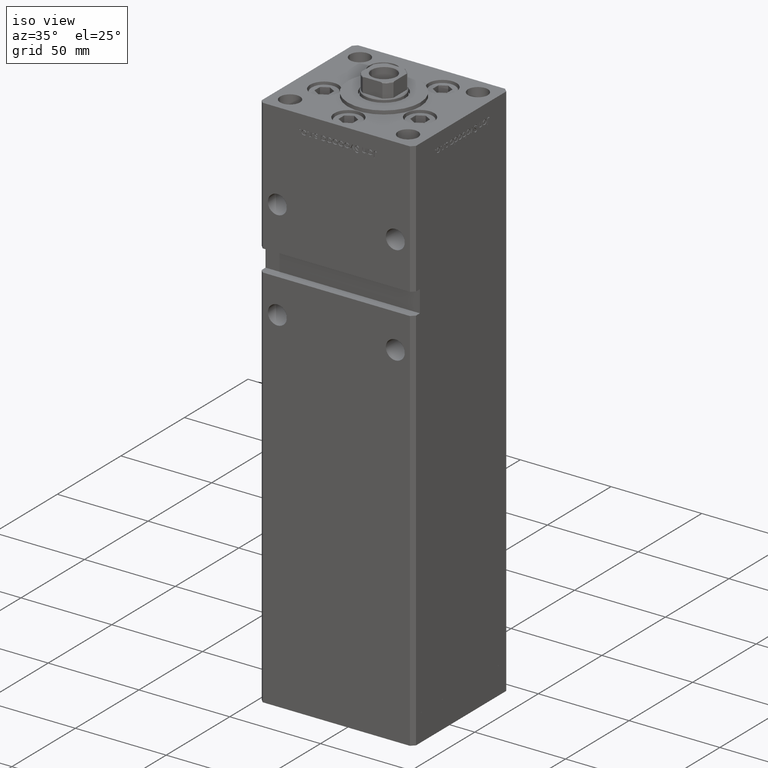
[diagram: clean part render]
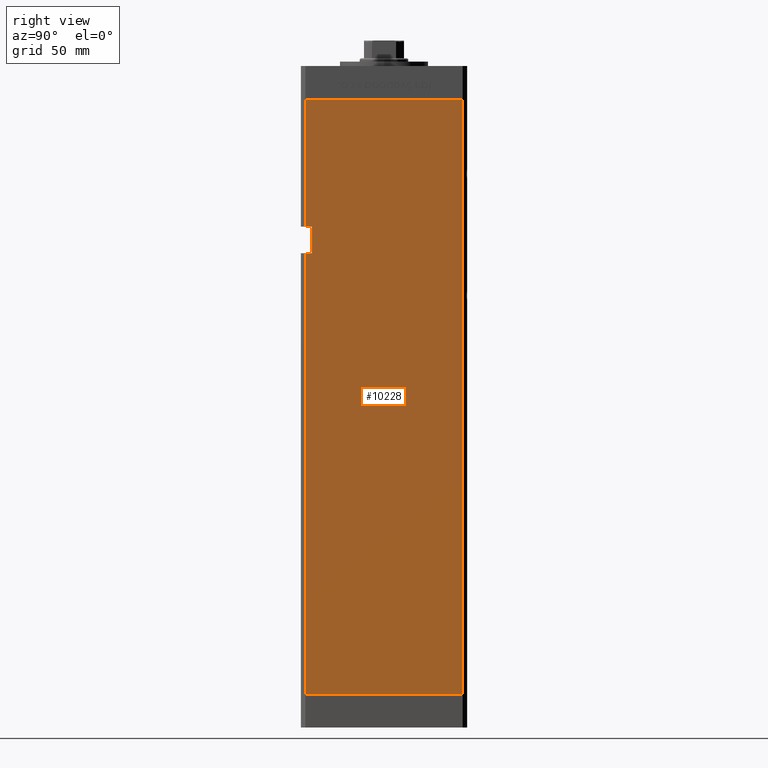
[diagram: tour spotlight — one face highlighted and labeled with its STEP entity id]
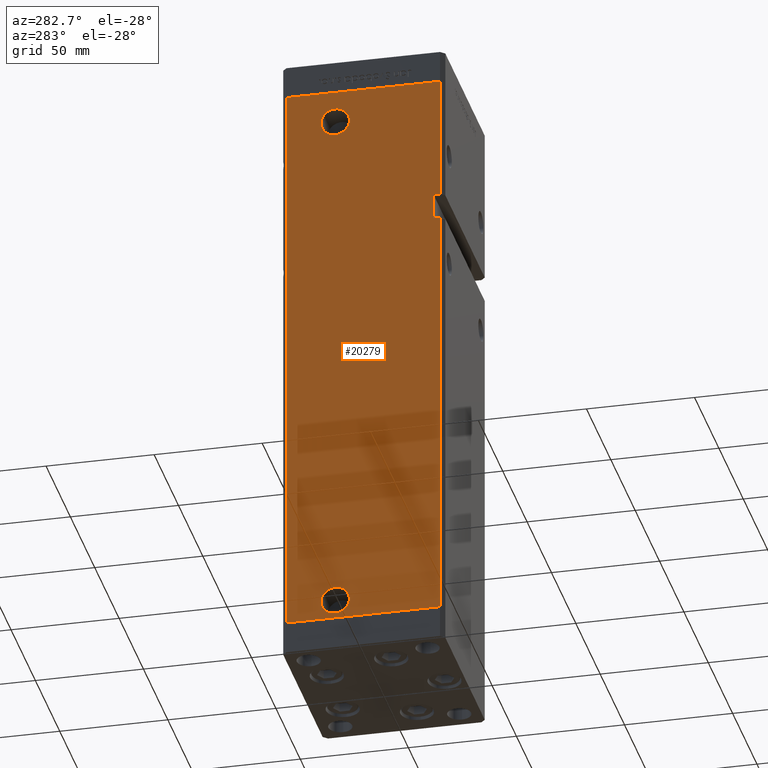
[diagram: tour spotlight — one face highlighted and labeled with its STEP entity id]
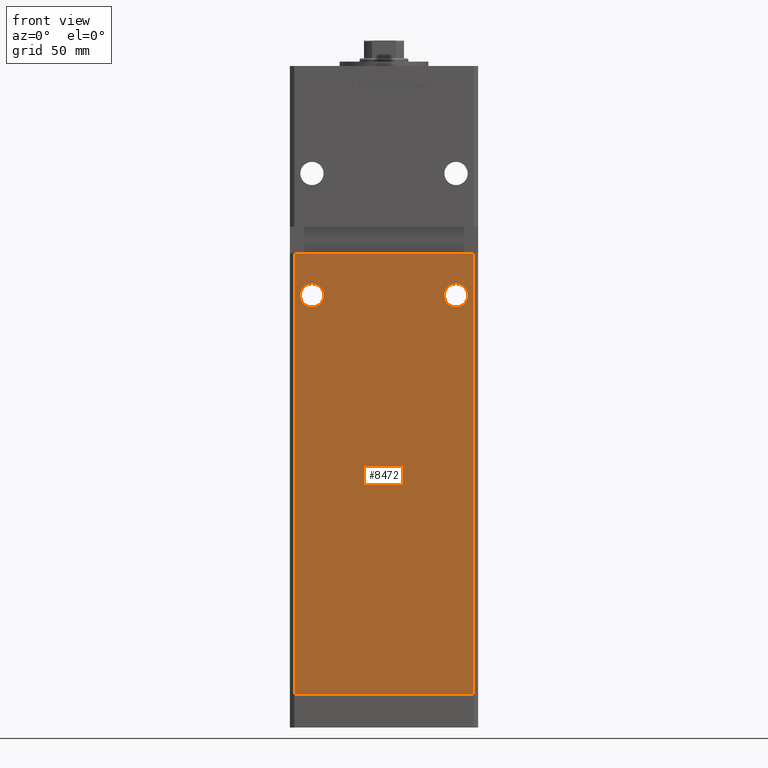
[diagram: tour spotlight — one face highlighted and labeled with its STEP entity id]
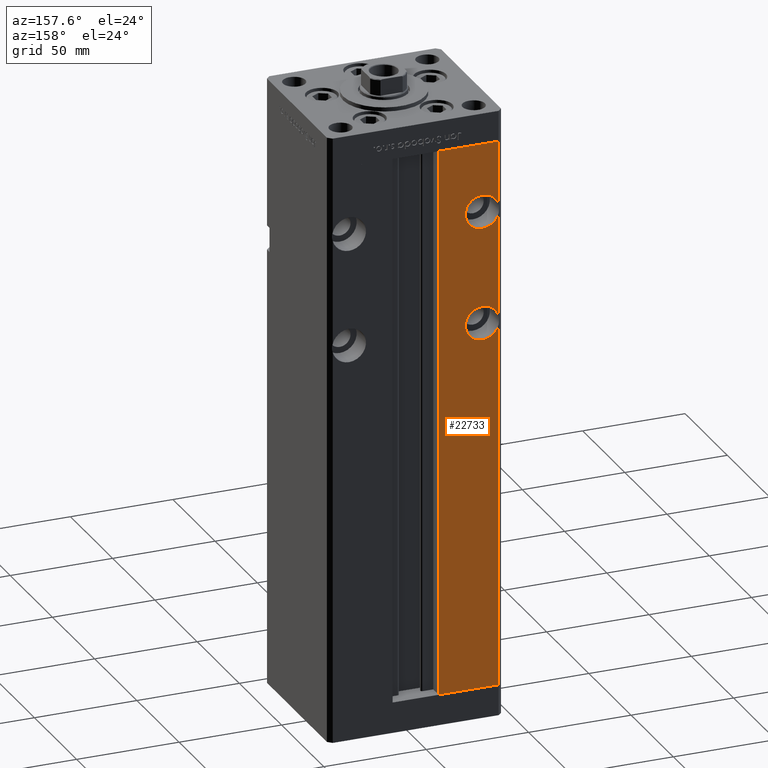
[diagram: tour spotlight — one face highlighted and labeled with its STEP entity id]
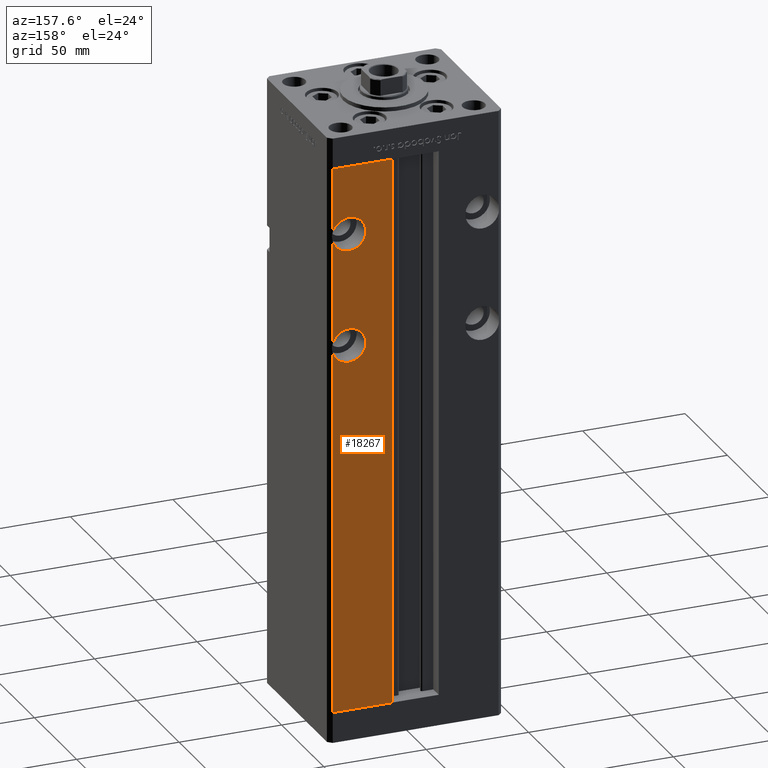
[diagram: tour spotlight — one face highlighted and labeled with its STEP entity id]
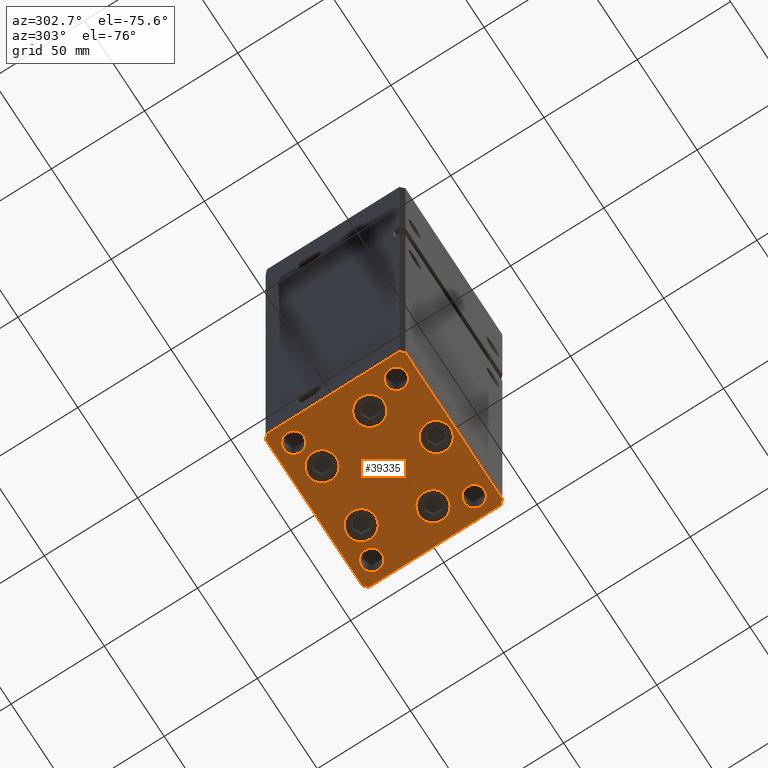
[diagram: tour spotlight — one face highlighted and labeled with its STEP entity id]
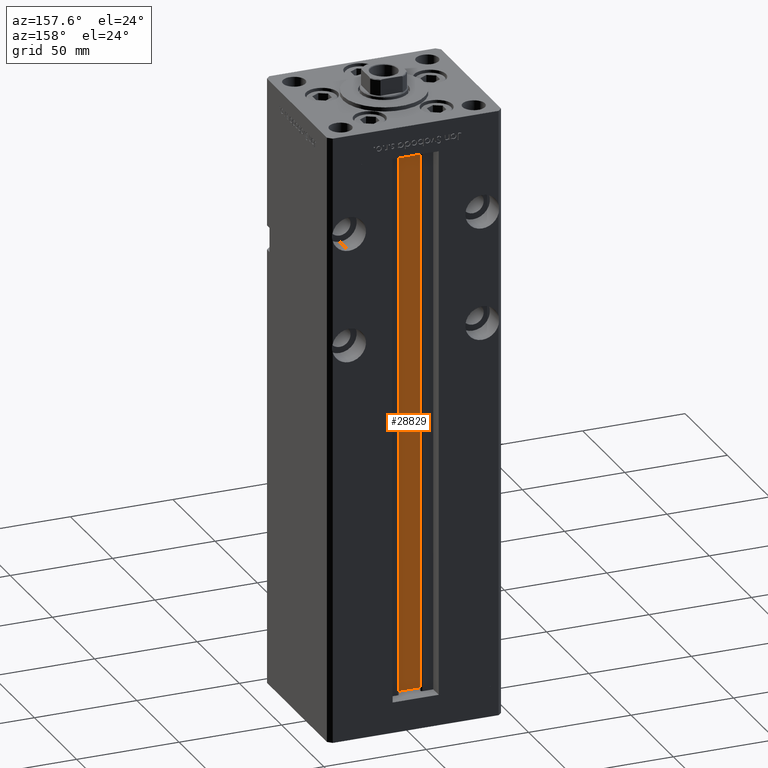
[diagram: tour spotlight — one face highlighted and labeled with its STEP entity id]
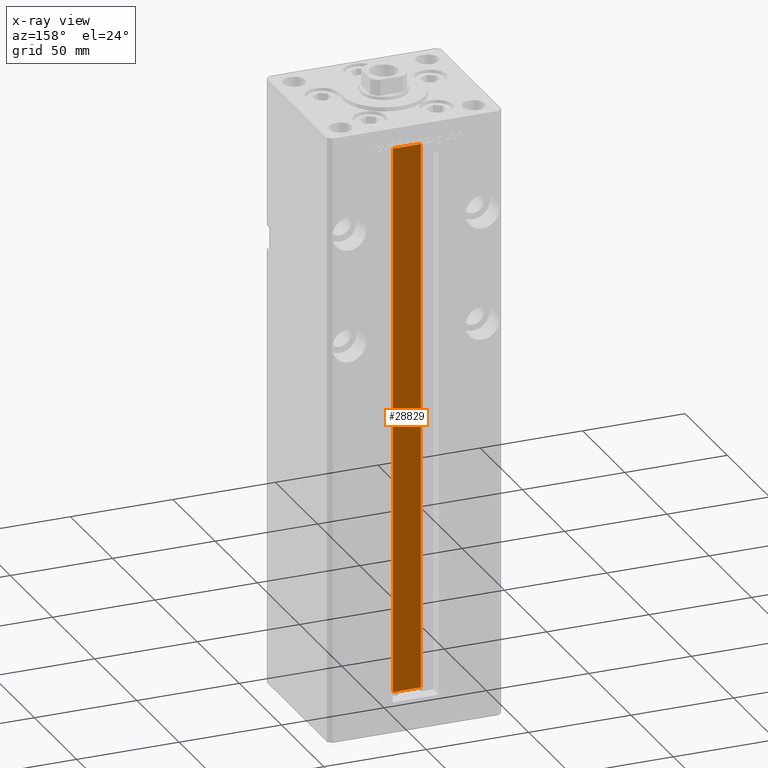
[diagram: x-ray of the same camera — body ghosted, this tour face saturated]
A machine part: a face-by-face anatomy tour. The part has 1212 B-rep faces; the first image is the clean iso view, then the 7 largest visible faces are spotlighted one at a time (largest first), each with its STEP entity span.

Face 1 — right view, entity #10228. In plain terms, the highlighted planar face has unit normal (1, -0, 0).
Definition (entity closure, byte-faithful):
#804 = EDGE_CURVE ( 'NONE', #1075, #41323, #29704, .T. ) ;
#896 = DIRECTION ( 'NONE',  ( -0.000000000000000000, -0.000000000000000000, -1.000000000000000000 ) ) ;
#1075 = VERTEX_POINT ( 'NONE', #35873 ) ;
#1955 = LINE ( 'NONE', #2757, #19604 ) ;
#2350 = VECTOR ( 'NONE', #4431, 1000.000000000000000 ) ;
#2413 = CARTESIAN_POINT ( 'NONE',  ( 42.50000000000001421, 35.50000000000000711, 0.000000000000000000 ) ) ;
#2757 = CARTESIAN_POINT ( 'NONE',  ( 42.49999999999998579, -32.50000000000000711, 211.0000000000000284 ) ) ;
#2896 = VECTOR ( 'NONE', #9787, 1000.000000000000000 ) ;
#3303 = VECTOR ( 'NONE', #33031, 1000.000000000000000 ) ;
#3985 = DIRECTION ( 'NONE',  ( -3.909236002201255146E-16, -1.000000000000000000, 0.000000000000000000 ) ) ;
#4377 = LINE ( 'NONE', #25875, #23839 ) ;
#4431 = DIRECTION ( 'NONE',  ( -0.000000000000000000, -0.000000000000000000, -1.000000000000000000 ) ) ;
#6120 = CARTESIAN_POINT ( 'NONE',  ( 42.49999999999998579, -32.50000000000000000, 199.0000000000000000 ) ) ;
#8123 = EDGE_CURVE ( 'NONE', #44392, #8126, #1955, .T. ) ;
#8126 = VERTEX_POINT ( 'NONE', #39053 ) ;
#8208 = VERTEX_POINT ( 'NONE', #20464 ) ;
#8628 = EDGE_CURVE ( 'NONE', #18258, #8208, #40827, .T. ) ;
#8861 = LINE ( 'NONE', #42215, #34357 ) ;
#9787 = DIRECTION ( 'NONE',  ( -0.000000000000000000, -1.000000000000000000, -0.000000000000000000 ) ) ;
#10228 = ADVANCED_FACE ( 'NONE', ( #34788 ), #51194, .T. ) ;
#13265 = EDGE_LOOP ( 'NONE', ( #44772, #26916, #22307, #41925, #38361, #22090, #20716, #30087 ) ) ;
#13488 = CARTESIAN_POINT ( 'NONE',  ( 42.49999999999998579, -35.50000000000000711, 0.000000000000000000 ) ) ;
#13856 = EDGE_CURVE ( 'NONE', #44392, #1075, #8861, .T. ) ;
#14316 = CARTESIAN_POINT ( 'NONE',  ( 42.50000000000001421, 35.50000000000000711, 268.5000000000000000 ) ) ;
#17195 = DIRECTION ( 'NONE',  ( -0.000000000000000000, -1.000000000000000000, -0.000000000000000000 ) ) ;
#18258 = VERTEX_POINT ( 'NONE', #40244 ) ;
#18803 = DIRECTION ( 'NONE',  ( -3.909236002201255146E-16, -1.000000000000000000, 0.000000000000000000 ) ) ;
#19604 = VECTOR ( 'NONE', #22643, 1000.000000000000000 ) ;
#20464 = CARTESIAN_POINT ( 'NONE',  ( 42.50000000000001421, 35.50000000000000711, 0.000000000000000000 ) ) ;
#20716 = ORIENTED_EDGE ( 'NONE', *, *, #24026, .F. ) ;
#22090 = ORIENTED_EDGE ( 'NONE', *, *, #38943, .T. ) ;
#22307 = ORIENTED_EDGE ( 'NONE', *, *, #23622, .F. ) ;
#22643 = DIRECTION ( 'NONE',  ( -0.000000000000000000, -0.000000000000000000, 1.000000000000000000 ) ) ;
#23622 = EDGE_CURVE ( 'NONE', #8208, #41323, #51347, .T. ) ;
#23839 = VECTOR ( 'NONE', #896, 1000.000000000000000 ) ;
#24026 = EDGE_CURVE ( 'NONE', #8126, #42391, #47452, .T. ) ;
#25664 = CARTESIAN_POINT ( 'NONE',  ( 42.49999999999998579, -35.50000000000000711, 268.5000000000000000 ) ) ;
#25875 = CARTESIAN_POINT ( 'NONE',  ( 42.49999999999998579, -35.50000000000000711, 268.5000000000000000 ) ) ;
#26472 = CARTESIAN_POINT ( 'NONE',  ( 42.49999999999998579, -32.50000000000000711, 211.0000000000000284 ) ) ;
#26543 = AXIS2_PLACEMENT_3D ( 'NONE', #14316, #30752, #48755 ) ;
#26916 = ORIENTED_EDGE ( 'NONE', *, *, #804, .T. ) ;
#29153 = CARTESIAN_POINT ( 'NONE',  ( 42.49999999999998579, -35.50000000000000711, 211.0000000000000284 ) ) ;
#29704 = LINE ( 'NONE', #25664, #2350 ) ;
#30087 = ORIENTED_EDGE ( 'NONE', *, *, #8123, .F. ) ;
#30752 = DIRECTION ( 'NONE',  ( 1.000000000000000000, -3.909236002201255146E-16, 0.000000000000000000 ) ) ;
#33031 = DIRECTION ( 'NONE',  ( -0.000000000000000000, -0.000000000000000000, -1.000000000000000000 ) ) ;
#34357 = VECTOR ( 'NONE', #17195, 1000.000000000000000 ) ;
#34788 = FACE_OUTER_BOUND ( 'NONE', #13265, .T. ) ;
#35873 = CARTESIAN_POINT ( 'NONE',  ( 42.49999999999998579, -35.50000000000000711, 199.0000000000000000 ) ) ;
#38361 = ORIENTED_EDGE ( 'NONE', *, *, #41093, .T. ) ;
#38943 = EDGE_CURVE ( 'NONE', #46974, #42391, #4377, .T. ) ;
#39053 = CARTESIAN_POINT ( 'NONE',  ( 42.49999999999998579, -32.50000000000000711, 211.0000000000000284 ) ) ;
#40244 = CARTESIAN_POINT ( 'NONE',  ( 42.50000000000001421, 35.50000000000000711, 268.5000000000000000 ) ) ;
#40827 = LINE ( 'NONE', #49177, #3303 ) ;
#41075 = CARTESIAN_POINT ( 'NONE',  ( 42.50000000000001421, 35.50000000000000711, 268.5000000000000000 ) ) ;
#41093 = EDGE_CURVE ( 'NONE', #18258, #46974, #45119, .T. ) ;
#41323 = VERTEX_POINT ( 'NONE', #13488 ) ;
#41925 = ORIENTED_EDGE ( 'NONE', *, *, #8628, .F. ) ;
#42215 = CARTESIAN_POINT ( 'NONE',  ( 42.49999999999998579, -32.50000000000000711, 199.0000000000000000 ) ) ;
#42391 = VERTEX_POINT ( 'NONE', #29153 ) ;
#44084 = CARTESIAN_POINT ( 'NONE',  ( 42.49999999999998579, -35.50000000000000711, 268.5000000000000000 ) ) ;
#44392 = VERTEX_POINT ( 'NONE', #6120 ) ;
#44772 = ORIENTED_EDGE ( 'NONE', *, *, #13856, .T. ) ;
#45119 = LINE ( 'NONE', #41075, #46209 ) ;
#46209 = VECTOR ( 'NONE', #3985, 1000.000000000000000 ) ;
#46974 = VERTEX_POINT ( 'NONE', #44084 ) ;
#47452 = LINE ( 'NONE', #26472, #2896 ) ;
#47569 = VECTOR ( 'NONE', #18803, 1000.000000000000000 ) ;
#48755 = DIRECTION ( 'NONE',  ( 3.909236002201255146E-16, 1.000000000000000000, 0.000000000000000000 ) ) ;
#49177 = CARTESIAN_POINT ( 'NONE',  ( 42.50000000000001421, 35.50000000000000711, 268.5000000000000000 ) ) ;
#51194 = PLANE ( 'NONE',  #26543 ) ;
#51347 = LINE ( 'NONE', #2413, #47569 ) ;

Face 2 — auxiliary view, entity #20279. In plain terms, the highlighted planar face has unit normal (1, 0, 0).
Definition (entity closure, byte-faithful):
#397 = ORIENTED_EDGE ( 'NONE', *, *, #25680, .F. ) ;
#1727 = CARTESIAN_POINT ( 'NONE',  ( -42.50000000000000000, 6.419999999999950191, 253.5000000000000000 ) ) ;
#2022 = ORIENTED_EDGE ( 'NONE', *, *, #23718, .F. ) ;
#3930 = DIRECTION ( 'NONE',  ( -1.000000000000000000, -2.275047181608927644E-16, 0.000000000000000000 ) ) ;
#5433 = ORIENTED_EDGE ( 'NONE', *, *, #21228, .T. ) ;
#6313 = LINE ( 'NONE', #31341, #25254 ) ;
#6697 = DIRECTION ( 'NONE',  ( -0.000000000000000000, -1.000000000000000000, -0.000000000000000000 ) ) ;
#7099 = VECTOR ( 'NONE', #30204, 1000.000000000000000 ) ;
#7111 = CARTESIAN_POINT ( 'NONE',  ( -42.49999999999998579, -35.50000000000000711, 268.5000000000000000 ) ) ;
#8034 = LINE ( 'NONE', #12072, #13941 ) ;
#8265 = CARTESIAN_POINT ( 'NONE',  ( -42.49999999999998579, -32.50000000000000711, 199.0000000000000000 ) ) ;
#8428 = FACE_BOUND ( 'NONE', #16379, .T. ) ;
#9791 = CARTESIAN_POINT ( 'NONE',  ( -42.50000000000001421, 35.50000000000000711, 0.000000000000000000 ) ) ;
#9902 = EDGE_CURVE ( 'NONE', #42331, #21104, #43703, .T. ) ;
#10175 = VERTEX_POINT ( 'NONE', #1727 ) ;
#10220 = VERTEX_POINT ( 'NONE', #18367 ) ;
#10722 = CARTESIAN_POINT ( 'NONE',  ( -42.49999999999998579, -32.50000000000000711, 211.0000000000000284 ) ) ;
#12072 = CARTESIAN_POINT ( 'NONE',  ( -42.50000000000001421, 35.50000000000000711, 0.000000000000000000 ) ) ;
#13941 = VECTOR ( 'NONE', #16361, 1000.000000000000000 ) ;
#14217 = LINE ( 'NONE', #10722, #14880 ) ;
#14307 = LINE ( 'NONE', #22405, #49146 ) ;
#14388 = ORIENTED_EDGE ( 'NONE', *, *, #9902, .F. ) ;
#14498 = CARTESIAN_POINT ( 'NONE',  ( -42.50000000000000000, 12.99999999999999467, 9.000000000000007105 ) ) ;
#14664 = AXIS2_PLACEMENT_3D ( 'NONE', #44433, #15917, #43643 ) ;
#14880 = VECTOR ( 'NONE', #6697, 1000.000000000000000 ) ;
#15726 = EDGE_CURVE ( 'NONE', #48350, #10175, #18991, .T. ) ;
#15832 = DIRECTION ( 'NONE',  ( -0.000000000000000000, -0.000000000000000000, -1.000000000000000000 ) ) ;
#15917 = DIRECTION ( 'NONE',  ( -1.000000000000000000, -2.275047181608927644E-16, 0.000000000000000000 ) ) ;
#16361 = DIRECTION ( 'NONE',  ( 3.909236002201255146E-16, -1.000000000000000000, 0.000000000000000000 ) ) ;
#16379 = EDGE_LOOP ( 'NONE', ( #41503, #21097 ) ) ;
#17814 = LINE ( 'NONE', #25900, #7099 ) ;
#18367 = CARTESIAN_POINT ( 'NONE',  ( -42.49999999999998579, -35.50000000000001421, 211.0000000000000284 ) ) ;
#18965 = DIRECTION ( 'NONE',  ( -0.000000000000000000, -0.000000000000000000, -1.000000000000000000 ) ) ;
#18991 = CIRCLE ( 'NONE', #14664, 6.580000000000044480 ) ;
#19336 = CARTESIAN_POINT ( 'NONE',  ( -42.50000000000000000, 12.99999999999999467, 253.5000000000000000 ) ) ;
#19873 = DIRECTION ( 'NONE',  ( -0.000000000000000000, -1.000000000000000000, -0.000000000000000000 ) ) ;
#20087 = VECTOR ( 'NONE', #19873, 1000.000000000000000 ) ;
#20279 = ADVANCED_FACE ( 'NONE', ( #49591, #8428, #29943 ), #29679, .F. ) ;
#20386 = EDGE_CURVE ( 'NONE', #49952, #20757, #14307, .T. ) ;
#20757 = VERTEX_POINT ( 'NONE', #24447 ) ;
#21097 = ORIENTED_EDGE ( 'NONE', *, *, #36446, .F. ) ;
#21104 = VERTEX_POINT ( 'NONE', #21608 ) ;
#21228 = EDGE_CURVE ( 'NONE', #49952, #33406, #17814, .T. ) ;
#21591 = EDGE_CURVE ( 'NONE', #33406, #21104, #8034, .T. ) ;
#21608 = CARTESIAN_POINT ( 'NONE',  ( -42.49999999999998579, -35.50000000000000711, 0.000000000000000000 ) ) ;
#21613 = DIRECTION ( 'NONE',  ( 1.000000000000000000, 3.909236002201255146E-16, -0.000000000000000000 ) ) ;
#21763 = AXIS2_PLACEMENT_3D ( 'NONE', #44801, #3930, #36221 ) ;
#22405 = CARTESIAN_POINT ( 'NONE',  ( -42.50000000000001421, 35.50000000000000711, 268.5000000000000000 ) ) ;
#23718 = EDGE_CURVE ( 'NONE', #38404, #42331, #53197, .T. ) ;
#23856 = EDGE_CURVE ( 'NONE', #24080, #35414, #46672, .T. ) ;
#24080 = VERTEX_POINT ( 'NONE', #43145 ) ;
#24338 = EDGE_CURVE ( 'NONE', #41395, #10220, #14217, .T. ) ;
#24447 = CARTESIAN_POINT ( 'NONE',  ( -42.49999999999998579, -35.50000000000000711, 268.5000000000000000 ) ) ;
#25108 = CARTESIAN_POINT ( 'NONE',  ( -42.50000000000001421, 35.50000000000000711, 268.5000000000000000 ) ) ;
#25254 = VECTOR ( 'NONE', #39132, 1000.000000000000000 ) ;
#25680 = EDGE_CURVE ( 'NONE', #41395, #38404, #6313, .T. ) ;
#25863 = ORIENTED_EDGE ( 'NONE', *, *, #20386, .F. ) ;
#25900 = CARTESIAN_POINT ( 'NONE',  ( -42.50000000000001421, 35.50000000000000711, 268.5000000000000000 ) ) ;
#25947 = AXIS2_PLACEMENT_3D ( 'NONE', #25108, #21613, #33995 ) ;
#26940 = ORIENTED_EDGE ( 'NONE', *, *, #21591, .T. ) ;
#27512 = ORIENTED_EDGE ( 'NONE', *, *, #15726, .F. ) ;
#27879 = EDGE_CURVE ( 'NONE', #20757, #10220, #36815, .T. ) ;
#28064 = AXIS2_PLACEMENT_3D ( 'NONE', #14498, #43831, #38726 ) ;
#28995 = CARTESIAN_POINT ( 'NONE',  ( -42.49999999999998579, -35.50000000000000711, 268.5000000000000000 ) ) ;
#29679 = PLANE ( 'NONE',  #25947 ) ;
#29868 = EDGE_LOOP ( 'NONE', ( #14388, #2022, #397, #50267, #42051, #25863, #5433, #26940 ) ) ;
#29943 = FACE_BOUND ( 'NONE', #40106, .T. ) ;
#30204 = DIRECTION ( 'NONE',  ( -0.000000000000000000, -0.000000000000000000, -1.000000000000000000 ) ) ;
#31341 = CARTESIAN_POINT ( 'NONE',  ( -42.49999999999998579, -32.50000000000000711, 211.0000000000000284 ) ) ;
#33243 = CARTESIAN_POINT ( 'NONE',  ( -42.50000000000000000, 19.58000000000003737, 253.5000000000000000 ) ) ;
#33406 = VERTEX_POINT ( 'NONE', #9791 ) ;
#33995 = DIRECTION ( 'NONE',  ( -3.909236002201255146E-16, 1.000000000000000000, 0.000000000000000000 ) ) ;
#35414 = VERTEX_POINT ( 'NONE', #50308 ) ;
#35751 = DIRECTION ( 'NONE',  ( 0.000000000000000000, -1.000000000000000000, 0.000000000000000000 ) ) ;
#36100 = CIRCLE ( 'NONE', #41372, 6.580000000000044480 ) ;
#36221 = DIRECTION ( 'NONE',  ( 0.000000000000000000, -1.000000000000000000, 0.000000000000000000 ) ) ;
#36446 = EDGE_CURVE ( 'NONE', #35414, #24080, #47797, .T. ) ;
#36526 = CARTESIAN_POINT ( 'NONE',  ( -42.50000000000001421, 35.50000000000000711, 268.5000000000000000 ) ) ;
#36815 = LINE ( 'NONE', #28995, #37345 ) ;
#37345 = VECTOR ( 'NONE', #15832, 1000.000000000000000 ) ;
#37551 = ORIENTED_EDGE ( 'NONE', *, *, #52042, .F. ) ;
#38404 = VERTEX_POINT ( 'NONE', #41401 ) ;
#38726 = DIRECTION ( 'NONE',  ( 0.000000000000000000, -1.000000000000000000, 0.000000000000000000 ) ) ;
#38805 = DIRECTION ( 'NONE',  ( 3.909236002201255146E-16, -1.000000000000000000, 0.000000000000000000 ) ) ;
#39132 = DIRECTION ( 'NONE',  ( -5.782411586589351722E-16, 0.000000000000000000, -1.000000000000000000 ) ) ;
#40106 = EDGE_LOOP ( 'NONE', ( #37551, #27512 ) ) ;
#41372 = AXIS2_PLACEMENT_3D ( 'NONE', #19336, #44073, #35751 ) ;
#41395 = VERTEX_POINT ( 'NONE', #41747 ) ;
#41401 = CARTESIAN_POINT ( 'NONE',  ( -42.49999999999998579, -32.50000000000000711, 199.0000000000000000 ) ) ;
#41503 = ORIENTED_EDGE ( 'NONE', *, *, #23856, .F. ) ;
#41747 = CARTESIAN_POINT ( 'NONE',  ( -42.49999999999998579, -32.50000000000000711, 211.0000000000000284 ) ) ;
#42051 = ORIENTED_EDGE ( 'NONE', *, *, #27879, .F. ) ;
#42331 = VERTEX_POINT ( 'NONE', #52850 ) ;
#43145 = CARTESIAN_POINT ( 'NONE',  ( -42.50000000000000000, 6.419999999999991935, 9.000000000000007105 ) ) ;
#43643 = DIRECTION ( 'NONE',  ( 0.000000000000000000, -1.000000000000000000, 0.000000000000000000 ) ) ;
#43703 = LINE ( 'NONE', #7111, #51439 ) ;
#43831 = DIRECTION ( 'NONE',  ( -1.000000000000000000, -2.275047181608927644E-16, 0.000000000000000000 ) ) ;
#44073 = DIRECTION ( 'NONE',  ( -1.000000000000000000, -2.275047181608927644E-16, 0.000000000000000000 ) ) ;
#44433 = CARTESIAN_POINT ( 'NONE',  ( -42.50000000000000000, 12.99999999999999467, 253.5000000000000000 ) ) ;
#44801 = CARTESIAN_POINT ( 'NONE',  ( -42.50000000000000000, 12.99999999999999467, 9.000000000000007105 ) ) ;
#46672 = CIRCLE ( 'NONE', #21763, 6.580000000000002736 ) ;
#47797 = CIRCLE ( 'NONE', #28064, 6.580000000000002736 ) ;
#48350 = VERTEX_POINT ( 'NONE', #33243 ) ;
#49146 = VECTOR ( 'NONE', #38805, 1000.000000000000000 ) ;
#49591 = FACE_OUTER_BOUND ( 'NONE', #29868, .T. ) ;
#49952 = VERTEX_POINT ( 'NONE', #36526 ) ;
#50267 = ORIENTED_EDGE ( 'NONE', *, *, #24338, .T. ) ;
#50308 = CARTESIAN_POINT ( 'NONE',  ( -42.50000000000000000, 19.57999999999999829, 9.000000000000007105 ) ) ;
#51439 = VECTOR ( 'NONE', #18965, 1000.000000000000000 ) ;
#52042 = EDGE_CURVE ( 'NONE', #10175, #48350, #36100, .T. ) ;
#52850 = CARTESIAN_POINT ( 'NONE',  ( -42.49999999999998579, -35.49999999999996447, 199.0000000000000000 ) ) ;
#53197 = LINE ( 'NONE', #8265, #20087 ) ;

Face 3 — front view, entity #8472. In plain terms, the highlighted planar face has unit normal (0, 1, 0).
Definition (entity closure, byte-faithful):
#429 = VECTOR ( 'NONE', #9980, 1000.000000000000000 ) ;
#1624 = DIRECTION ( 'NONE',  ( 0.000000000000000000, -0.000000000000000000, 1.000000000000000000 ) ) ;
#1705 = DIRECTION ( 'NONE',  ( 0.000000000000000000, 1.000000000000000000, 0.000000000000000000 ) ) ;
#3082 = VECTOR ( 'NONE', #39578, 1000.000000000000000 ) ;
#3314 = EDGE_LOOP ( 'NONE', ( #22008, #24391 ) ) ;
#3684 = DIRECTION ( 'NONE',  ( 0.000000000000000000, 1.000000000000000000, 0.000000000000000000 ) ) ;
#5999 = CARTESIAN_POINT ( 'NONE',  ( -40.49999999999998579, -37.50000000000000711, 199.0000000000000000 ) ) ;
#6335 = DIRECTION ( 'NONE',  ( 0.000000000000000000, 1.000000000000000000, 0.000000000000000000 ) ) ;
#8052 = VERTEX_POINT ( 'NONE', #42547 ) ;
#8472 = ADVANCED_FACE ( 'NONE', ( #31191, #42744, #43020 ), #46518, .F. ) ;
#8940 = CARTESIAN_POINT ( 'NONE',  ( 32.50000000000000000, -37.50000000000000711, 180.0000000000000284 ) ) ;
#9621 = EDGE_CURVE ( 'NONE', #49562, #37305, #28415, .T. ) ;
#9888 = VERTEX_POINT ( 'NONE', #42898 ) ;
#9954 = AXIS2_PLACEMENT_3D ( 'NONE', #8940, #1705, #34767 ) ;
#9980 = DIRECTION ( 'NONE',  ( -0.000000000000000000, -0.000000000000000000, -1.000000000000000000 ) ) ;
#10248 = CARTESIAN_POINT ( 'NONE',  ( 40.49999999999998579, -37.50000000000000711, 268.5000000000000000 ) ) ;
#10302 = ORIENTED_EDGE ( 'NONE', *, *, #32112, .F. ) ;
#10458 = CARTESIAN_POINT ( 'NONE',  ( -40.49999999999998579, -37.50000000000000711, 268.5000000000000000 ) ) ;
#10948 = ORIENTED_EDGE ( 'NONE', *, *, #18214, .T. ) ;
#11198 = CARTESIAN_POINT ( 'NONE',  ( -32.50000000000000000, -37.50000000000000711, 180.0000000000000284 ) ) ;
#14546 = LINE ( 'NONE', #10248, #429 ) ;
#16158 = VECTOR ( 'NONE', #27354, 1000.000000000000000 ) ;
#16406 = DIRECTION ( 'NONE',  ( 1.000000000000000000, 0.000000000000000000, 0.000000000000000000 ) ) ;
#16552 = CIRCLE ( 'NONE', #50110, 5.250000000000004441 ) ;
#17855 = AXIS2_PLACEMENT_3D ( 'NONE', #10458, #18535, #1624 ) ;
#18205 = DIRECTION ( 'NONE',  ( 0.000000000000000000, 0.000000000000000000, 1.000000000000000000 ) ) ;
#18214 = EDGE_CURVE ( 'NONE', #24479, #49700, #32072, .T. ) ;
#18535 = DIRECTION ( 'NONE',  ( 0.000000000000000000, 1.000000000000000000, 0.000000000000000000 ) ) ;
#18741 = CARTESIAN_POINT ( 'NONE',  ( -32.50000000000000000, -37.50000000000000711, 180.0000000000000284 ) ) ;
#18987 = CARTESIAN_POINT ( 'NONE',  ( 32.50000000000000000, -37.50000000000000711, 180.0000000000000284 ) ) ;
#19311 = VERTEX_POINT ( 'NONE', #29999 ) ;
#19650 = AXIS2_PLACEMENT_3D ( 'NONE', #11198, #3684, #53145 ) ;
#22008 = ORIENTED_EDGE ( 'NONE', *, *, #36092, .T. ) ;
#22893 = EDGE_CURVE ( 'NONE', #19311, #8052, #16552, .T. ) ;
#24391 = ORIENTED_EDGE ( 'NONE', *, *, #22893, .T. ) ;
#24479 = VERTEX_POINT ( 'NONE', #45664 ) ;
#24596 = EDGE_LOOP ( 'NONE', ( #10948, #45987 ) ) ;
#26471 = VECTOR ( 'NONE', #16406, 1000.000000000000000 ) ;
#27354 = DIRECTION ( 'NONE',  ( -0.000000000000000000, -0.000000000000000000, -1.000000000000000000 ) ) ;
#28316 = CARTESIAN_POINT ( 'NONE',  ( -40.49999999999998579, -37.50000000000000711, 0.000000000000000000 ) ) ;
#28415 = LINE ( 'NONE', #47802, #16158 ) ;
#28530 = CARTESIAN_POINT ( 'NONE',  ( -40.49999999999998579, -37.50000000000000711, 0.000000000000000000 ) ) ;
#29999 = CARTESIAN_POINT ( 'NONE',  ( 32.50000000000000000, -37.50000000000000711, 174.7500000000000284 ) ) ;
#30327 = AXIS2_PLACEMENT_3D ( 'NONE', #18741, #35160, #18205 ) ;
#31191 = FACE_BOUND ( 'NONE', #24596, .T. ) ;
#32072 = CIRCLE ( 'NONE', #30327, 5.250000000000004441 ) ;
#32089 = CARTESIAN_POINT ( 'NONE',  ( -32.50000000000000000, -37.50000000000000711, 174.7500000000000284 ) ) ;
#32112 = EDGE_CURVE ( 'NONE', #9888, #41600, #14546, .T. ) ;
#32556 = CIRCLE ( 'NONE', #19650, 5.250000000000004441 ) ;
#32582 = CARTESIAN_POINT ( 'NONE',  ( 40.49999999999998579, -37.50000000000000711, 0.000000000000000000 ) ) ;
#33797 = ORIENTED_EDGE ( 'NONE', *, *, #41526, .T. ) ;
#34503 = EDGE_CURVE ( 'NONE', #49562, #9888, #35292, .T. ) ;
#34767 = DIRECTION ( 'NONE',  ( 0.000000000000000000, 0.000000000000000000, 1.000000000000000000 ) ) ;
#34807 = EDGE_LOOP ( 'NONE', ( #10302, #51671, #38109, #33797 ) ) ;
#35160 = DIRECTION ( 'NONE',  ( 0.000000000000000000, 1.000000000000000000, 0.000000000000000000 ) ) ;
#35292 = LINE ( 'NONE', #51699, #3082 ) ;
#35395 = DIRECTION ( 'NONE',  ( 0.000000000000000000, 0.000000000000000000, 1.000000000000000000 ) ) ;
#35747 = CIRCLE ( 'NONE', #9954, 5.250000000000004441 ) ;
#35825 = LINE ( 'NONE', #28530, #26471 ) ;
#36092 = EDGE_CURVE ( 'NONE', #8052, #19311, #35747, .T. ) ;
#37305 = VERTEX_POINT ( 'NONE', #28316 ) ;
#38109 = ORIENTED_EDGE ( 'NONE', *, *, #9621, .T. ) ;
#39578 = DIRECTION ( 'NONE',  ( 1.000000000000000000, 0.000000000000000000, 0.000000000000000000 ) ) ;
#41526 = EDGE_CURVE ( 'NONE', #37305, #41600, #35825, .T. ) ;
#41600 = VERTEX_POINT ( 'NONE', #32582 ) ;
#42547 = CARTESIAN_POINT ( 'NONE',  ( 32.50000000000000000, -37.50000000000000711, 185.2500000000000284 ) ) ;
#42744 = FACE_BOUND ( 'NONE', #3314, .T. ) ;
#42898 = CARTESIAN_POINT ( 'NONE',  ( 40.49999999999998579, -37.50000000000000711, 199.0000000000000000 ) ) ;
#43020 = FACE_OUTER_BOUND ( 'NONE', #34807, .T. ) ;
#45664 = CARTESIAN_POINT ( 'NONE',  ( -32.50000000000000000, -37.50000000000000711, 185.2500000000000284 ) ) ;
#45987 = ORIENTED_EDGE ( 'NONE', *, *, #47430, .T. ) ;
#46518 = PLANE ( 'NONE',  #17855 ) ;
#47430 = EDGE_CURVE ( 'NONE', #49700, #24479, #32556, .T. ) ;
#47802 = CARTESIAN_POINT ( 'NONE',  ( -40.49999999999998579, -37.50000000000000711, 268.5000000000000000 ) ) ;
#49562 = VERTEX_POINT ( 'NONE', #5999 ) ;
#49700 = VERTEX_POINT ( 'NONE', #32089 ) ;
#50110 = AXIS2_PLACEMENT_3D ( 'NONE', #18987, #6335, #35395 ) ;
#51671 = ORIENTED_EDGE ( 'NONE', *, *, #34503, .F. ) ;
#51699 = CARTESIAN_POINT ( 'NONE',  ( -42.49999999999998579, -37.50000000000000711, 199.0000000000000000 ) ) ;
#53145 = DIRECTION ( 'NONE',  ( 0.000000000000000000, 0.000000000000000000, 1.000000000000000000 ) ) ;

Face 4 — auxiliary view, entity #22733. In plain terms, the highlighted planar face has unit normal (0, -1, 0).
Definition (entity closure, byte-faithful):
#98 = CARTESIAN_POINT ( 'NONE',  ( -32.50000000000000000, 37.50000000000000000, 243.2500000000000284 ) ) ;
#153 = EDGE_CURVE ( 'NONE', #24864, #49757, #44185, .T. ) ;
#596 = CARTESIAN_POINT ( 'NONE',  ( -32.50000000000000000, 37.50000000000000000, 188.2500000000000284 ) ) ;
#1056 = AXIS2_PLACEMENT_3D ( 'NONE', #24585, #20297, #7653 ) ;
#1529 = DIRECTION ( 'NONE',  ( 0.000000000000000000, 1.000000000000000000, 0.000000000000000000 ) ) ;
#1618 = DIRECTION ( 'NONE',  ( -1.000000000000000000, 0.000000000000000000, 0.000000000000000000 ) ) ;
#2528 = DIRECTION ( 'NONE',  ( 1.000000000000000000, 0.000000000000000000, 0.000000000000000000 ) ) ;
#2600 = ORIENTED_EDGE ( 'NONE', *, *, #37137, .F. ) ;
#2856 = ORIENTED_EDGE ( 'NONE', *, *, #20167, .F. ) ;
#6513 = AXIS2_PLACEMENT_3D ( 'NONE', #31054, #10048, #47448 ) ;
#6527 = LINE ( 'NONE', #10290, #9378 ) ;
#7194 = FACE_OUTER_BOUND ( 'NONE', #12391, .T. ) ;
#7341 = CARTESIAN_POINT ( 'NONE',  ( -40.50000000000000711, 37.50000000000000000, 268.5000000000000000 ) ) ;
#7653 = DIRECTION ( 'NONE',  ( 0.000000000000000000, 0.000000000000000000, 1.000000000000000000 ) ) ;
#8197 = VECTOR ( 'NONE', #25482, 1000.000000000000000 ) ;
#9368 = VERTEX_POINT ( 'NONE', #27952 ) ;
#9378 = VECTOR ( 'NONE', #2528, 1000.000000000000000 ) ;
#9894 = VERTEX_POINT ( 'NONE', #22458 ) ;
#10048 = DIRECTION ( 'NONE',  ( 0.000000000000000000, 1.000000000000000000, -0.000000000000000000 ) ) ;
#10290 = CARTESIAN_POINT ( 'NONE',  ( -11.24999999999999822, 37.50000000000000000, 268.5000000000000000 ) ) ;
#11104 = EDGE_CURVE ( 'NONE', #30967, #51290, #35158, .T. ) ;
#11551 = ORIENTED_EDGE ( 'NONE', *, *, #47366, .F. ) ;
#12391 = EDGE_LOOP ( 'NONE', ( #12519, #40660, #29889, #48325, #2600, #47560, #37007, #37308, #37490, #2856, #37253, #11551 ) ) ;
#12414 = CARTESIAN_POINT ( 'NONE',  ( -32.50000000000000000, 37.50000000000000000, 235.0000000000000284 ) ) ;
#12519 = ORIENTED_EDGE ( 'NONE', *, *, #34579, .F. ) ;
#12623 = VECTOR ( 'NONE', #1618, 1000.000000000000000 ) ;
#13060 = CIRCLE ( 'NONE', #1056, 8.250000000000007105 ) ;
#13725 = CARTESIAN_POINT ( 'NONE',  ( -11.24999999999999822, 37.50000000000000000, 0.000000000000000000 ) ) ;
#14319 = DIRECTION ( 'NONE',  ( -0.000000000000000000, -0.000000000000000000, -1.000000000000000000 ) ) ;
#14740 = VERTEX_POINT ( 'NONE', #48393 ) ;
#15824 = CARTESIAN_POINT ( 'NONE',  ( -40.50000000000000711, 37.50000000000000000, 268.5000000000000000 ) ) ;
#16335 = LINE ( 'NONE', #29519, #8197 ) ;
#16345 = VERTEX_POINT ( 'NONE', #38682 ) ;
#18501 = CARTESIAN_POINT ( 'NONE',  ( -11.24999999999999822, 37.50000000000000000, 0.000000000000000000 ) ) ;
#19442 = CARTESIAN_POINT ( 'NONE',  ( -40.50000000000000711, 37.50000000000000000, 0.000000000000000000 ) ) ;
#20167 = EDGE_CURVE ( 'NONE', #51290, #24864, #13060, .T. ) ;
#20255 = DIRECTION ( 'NONE',  ( 0.000000000000000000, 0.000000000000000000, -1.000000000000000000 ) ) ;
#20297 = DIRECTION ( 'NONE',  ( 0.000000000000000000, 1.000000000000000000, 0.000000000000000000 ) ) ;
#20815 = EDGE_CURVE ( 'NONE', #14740, #9894, #36339, .T. ) ;
#21380 = AXIS2_PLACEMENT_3D ( 'NONE', #41026, #49120, #32458 ) ;
#22458 = CARTESIAN_POINT ( 'NONE',  ( -40.50000000000000711, 37.50000000000000000, 232.9844355629253982 ) ) ;
#22544 = VERTEX_POINT ( 'NONE', #18501 ) ;
#22733 = ADVANCED_FACE ( 'NONE', ( #7194 ), #43515, .F. ) ;
#23611 = DIRECTION ( 'NONE',  ( 0.000000000000000000, -1.000000000000000000, 0.000000000000000000 ) ) ;
#23754 = DIRECTION ( 'NONE',  ( -0.000000000000000000, -0.000000000000000000, -1.000000000000000000 ) ) ;
#24357 = VERTEX_POINT ( 'NONE', #15824 ) ;
#24585 = CARTESIAN_POINT ( 'NONE',  ( -32.50000000000000000, 37.50000000000000000, 180.0000000000000284 ) ) ;
#24601 = VECTOR ( 'NONE', #14319, 1000.000000000000000 ) ;
#24864 = VERTEX_POINT ( 'NONE', #31594 ) ;
#25236 = CARTESIAN_POINT ( 'NONE',  ( -32.50000000000000000, 37.50000000000000000, 235.0000000000000284 ) ) ;
#25482 = DIRECTION ( 'NONE',  ( -0.000000000000000000, -0.000000000000000000, -1.000000000000000000 ) ) ;
#25854 = LINE ( 'NONE', #13725, #43565 ) ;
#26111 = DIRECTION ( 'NONE',  ( -0.000000000000000000, -0.000000000000000000, 1.000000000000000000 ) ) ;
#27113 = DIRECTION ( 'NONE',  ( 0.000000000000000000, -0.000000000000000000, -1.000000000000000000 ) ) ;
#27952 = CARTESIAN_POINT ( 'NONE',  ( -11.24999999999999822, 37.50000000000000000, 268.5000000000000000 ) ) ;
#29000 = DIRECTION ( 'NONE',  ( 0.000000000000000000, 0.000000000000000000, -1.000000000000000000 ) ) ;
#29439 = VERTEX_POINT ( 'NONE', #46529 ) ;
#29491 = CARTESIAN_POINT ( 'NONE',  ( -32.50000000000000000, 37.50000000000000000, 180.0000000000000284 ) ) ;
#29519 = CARTESIAN_POINT ( 'NONE',  ( -40.50000000000000711, 37.50000000000000000, 268.5000000000000000 ) ) ;
#29759 = DIRECTION ( 'NONE',  ( 0.000000000000000000, 0.000000000000000000, 1.000000000000000000 ) ) ;
#29889 = ORIENTED_EDGE ( 'NONE', *, *, #50459, .F. ) ;
#30967 = VERTEX_POINT ( 'NONE', #596 ) ;
#31054 = CARTESIAN_POINT ( 'NONE',  ( -32.50000000000000000, 37.50000000000000000, 235.0000000000000284 ) ) ;
#31594 = CARTESIAN_POINT ( 'NONE',  ( -40.50000000000000711, 37.50000000000000000, 177.9844355629253982 ) ) ;
#32272 = DIRECTION ( 'NONE',  ( 0.000000000000000000, 1.000000000000000000, -0.000000000000000000 ) ) ;
#32458 = DIRECTION ( 'NONE',  ( 0.000000000000000000, 0.000000000000000000, 1.000000000000000000 ) ) ;
#32635 = CIRCLE ( 'NONE', #39493, 8.250000000000007105 ) ;
#34216 = EDGE_CURVE ( 'NONE', #16345, #39660, #52023, .T. ) ;
#34424 = LINE ( 'NONE', #51348, #12623 ) ;
#34579 = EDGE_CURVE ( 'NONE', #9894, #29439, #16335, .T. ) ;
#35158 = CIRCLE ( 'NONE', #47165, 8.250000000000007105 ) ;
#35195 = CARTESIAN_POINT ( 'NONE',  ( -11.24999999999999822, 37.50000000000000000, 268.5000000000000000 ) ) ;
#36339 = CIRCLE ( 'NONE', #46598, 8.250000000000007105 ) ;
#37007 = ORIENTED_EDGE ( 'NONE', *, *, #37507, .F. ) ;
#37137 = EDGE_CURVE ( 'NONE', #24357, #16345, #46360, .T. ) ;
#37253 = ORIENTED_EDGE ( 'NONE', *, *, #11104, .F. ) ;
#37308 = ORIENTED_EDGE ( 'NONE', *, *, #39331, .T. ) ;
#37490 = ORIENTED_EDGE ( 'NONE', *, *, #153, .F. ) ;
#37507 = EDGE_CURVE ( 'NONE', #22544, #9368, #25854, .T. ) ;
#38523 = CIRCLE ( 'NONE', #21380, 8.250000000000007105 ) ;
#38682 = CARTESIAN_POINT ( 'NONE',  ( -40.50000000000000711, 37.50000000000000000, 237.0155644370746302 ) ) ;
#39331 = EDGE_CURVE ( 'NONE', #22544, #49757, #34424, .T. ) ;
#39351 = CARTESIAN_POINT ( 'NONE',  ( -40.50000000000000711, 37.50000000000000000, 268.5000000000000000 ) ) ;
#39493 = AXIS2_PLACEMENT_3D ( 'NONE', #12414, #45242, #20255 ) ;
#39660 = VERTEX_POINT ( 'NONE', #98 ) ;
#40660 = ORIENTED_EDGE ( 'NONE', *, *, #20815, .F. ) ;
#41026 = CARTESIAN_POINT ( 'NONE',  ( -32.50000000000000000, 37.50000000000000000, 180.0000000000000284 ) ) ;
#42340 = AXIS2_PLACEMENT_3D ( 'NONE', #35195, #23611, #27113 ) ;
#43515 = PLANE ( 'NONE',  #42340 ) ;
#43565 = VECTOR ( 'NONE', #26111, 1000.000000000000000 ) ;
#44185 = LINE ( 'NONE', #7341, #45244 ) ;
#44207 = CARTESIAN_POINT ( 'NONE',  ( -32.50000000000000000, 37.50000000000000000, 171.7500000000000000 ) ) ;
#45242 = DIRECTION ( 'NONE',  ( 0.000000000000000000, 1.000000000000000000, -0.000000000000000000 ) ) ;
#45244 = VECTOR ( 'NONE', #23754, 1000.000000000000000 ) ;
#46360 = LINE ( 'NONE', #39351, #24601 ) ;
#46529 = CARTESIAN_POINT ( 'NONE',  ( -40.50000000000000711, 37.50000000000000000, 182.0155644370746586 ) ) ;
#46598 = AXIS2_PLACEMENT_3D ( 'NONE', #25236, #32272, #29000 ) ;
#47165 = AXIS2_PLACEMENT_3D ( 'NONE', #29491, #1529, #29759 ) ;
#47366 = EDGE_CURVE ( 'NONE', #29439, #30967, #38523, .T. ) ;
#47448 = DIRECTION ( 'NONE',  ( 0.000000000000000000, 0.000000000000000000, -1.000000000000000000 ) ) ;
#47560 = ORIENTED_EDGE ( 'NONE', *, *, #49543, .T. ) ;
#48325 = ORIENTED_EDGE ( 'NONE', *, *, #34216, .F. ) ;
#48393 = CARTESIAN_POINT ( 'NONE',  ( -32.50000000000000000, 37.50000000000000000, 226.7500000000000000 ) ) ;
#49120 = DIRECTION ( 'NONE',  ( 0.000000000000000000, 1.000000000000000000, 0.000000000000000000 ) ) ;
#49543 = EDGE_CURVE ( 'NONE', #24357, #9368, #6527, .T. ) ;
#49757 = VERTEX_POINT ( 'NONE', #19442 ) ;
#50459 = EDGE_CURVE ( 'NONE', #39660, #14740, #32635, .T. ) ;
#51290 = VERTEX_POINT ( 'NONE', #44207 ) ;
#51348 = CARTESIAN_POINT ( 'NONE',  ( -11.24999999999999822, 37.50000000000000000, 0.000000000000000000 ) ) ;
#52023 = CIRCLE ( 'NONE', #6513, 8.250000000000007105 ) ;

Face 5 — auxiliary view, entity #18267. In plain terms, the highlighted planar face has unit normal (0, -1, 0).
Definition (entity closure, byte-faithful):
#93 = EDGE_CURVE ( 'NONE', #26989, #41444, #31564, .T. ) ;
#627 = ORIENTED_EDGE ( 'NONE', *, *, #30593, .F. ) ;
#861 = DIRECTION ( 'NONE',  ( 0.000000000000000000, 0.000000000000000000, 1.000000000000000000 ) ) ;
#2497 = CARTESIAN_POINT ( 'NONE',  ( 40.50000000000000711, 37.50000000000000000, 268.5000000000000000 ) ) ;
#2774 = CARTESIAN_POINT ( 'NONE',  ( 40.50000000000000711, 37.50000000000000000, 268.5000000000000000 ) ) ;
#2796 = DIRECTION ( 'NONE',  ( 1.000000000000000000, 0.000000000000000000, 0.000000000000000000 ) ) ;
#2901 = ORIENTED_EDGE ( 'NONE', *, *, #28393, .F. ) ;
#3234 = DIRECTION ( 'NONE',  ( 0.000000000000000000, 0.000000000000000000, -1.000000000000000000 ) ) ;
#3656 = VERTEX_POINT ( 'NONE', #36130 ) ;
#3716 = CARTESIAN_POINT ( 'NONE',  ( 40.50000000000000711, 37.50000000000000000, 0.000000000000000000 ) ) ;
#4495 = LINE ( 'NONE', #37299, #7292 ) ;
#4870 = CARTESIAN_POINT ( 'NONE',  ( 32.50000000000000000, 37.50000000000000000, 235.0000000000000284 ) ) ;
#5484 = ORIENTED_EDGE ( 'NONE', *, *, #45134, .F. ) ;
#6169 = CARTESIAN_POINT ( 'NONE',  ( 11.24999999999999112, 37.50000000000000000, 268.5000000000000000 ) ) ;
#6393 = VERTEX_POINT ( 'NONE', #14107 ) ;
#6519 = ORIENTED_EDGE ( 'NONE', *, *, #93, .T. ) ;
#6780 = CARTESIAN_POINT ( 'NONE',  ( 32.50000000000000000, 37.50000000000000000, 226.7500000000000000 ) ) ;
#6818 = AXIS2_PLACEMENT_3D ( 'NONE', #4870, #41439, #861 ) ;
#7077 = ORIENTED_EDGE ( 'NONE', *, *, #49547, .T. ) ;
#7292 = VECTOR ( 'NONE', #41594, 1000.000000000000000 ) ;
#7479 = DIRECTION ( 'NONE',  ( 0.000000000000000000, 1.000000000000000000, 0.000000000000000000 ) ) ;
#8079 = CIRCLE ( 'NONE', #51060, 8.250000000000007105 ) ;
#8185 = VERTEX_POINT ( 'NONE', #28274 ) ;
#9097 = VERTEX_POINT ( 'NONE', #48204 ) ;
#9279 = DIRECTION ( 'NONE',  ( 0.000000000000000000, 1.000000000000000000, -0.000000000000000000 ) ) ;
#9636 = ORIENTED_EDGE ( 'NONE', *, *, #31520, .T. ) ;
#10936 = CARTESIAN_POINT ( 'NONE',  ( 11.24999999999999822, 37.50000000000000000, 0.000000000000000000 ) ) ;
#10971 = DIRECTION ( 'NONE',  ( 0.000000000000000000, 0.000000000000000000, 1.000000000000000000 ) ) ;
#11903 = ORIENTED_EDGE ( 'NONE', *, *, #48882, .F. ) ;
#12710 = EDGE_CURVE ( 'NONE', #35676, #3656, #23182, .T. ) ;
#13232 = ORIENTED_EDGE ( 'NONE', *, *, #12710, .F. ) ;
#13259 = AXIS2_PLACEMENT_3D ( 'NONE', #20342, #52373, #41027 ) ;
#13270 = EDGE_CURVE ( 'NONE', #52653, #15304, #28713, .T. ) ;
#14107 = CARTESIAN_POINT ( 'NONE',  ( 32.50000000000000000, 37.50000000000000000, 171.7500000000000000 ) ) ;
#14301 = DIRECTION ( 'NONE',  ( -0.000000000000000000, -0.000000000000000000, -1.000000000000000000 ) ) ;
#15304 = VERTEX_POINT ( 'NONE', #21076 ) ;
#15776 = DIRECTION ( 'NONE',  ( 0.000000000000000000, 0.000000000000000000, -1.000000000000000000 ) ) ;
#16018 = FACE_OUTER_BOUND ( 'NONE', #30219, .T. ) ;
#16035 = DIRECTION ( 'NONE',  ( 0.000000000000000000, 1.000000000000000000, -0.000000000000000000 ) ) ;
#16707 = CIRCLE ( 'NONE', #20202, 8.250000000000007105 ) ;
#18267 = ADVANCED_FACE ( 'NONE', ( #16018 ), #39717, .F. ) ;
#18918 = VECTOR ( 'NONE', #50226, 1000.000000000000000 ) ;
#19703 = VERTEX_POINT ( 'NONE', #6780 ) ;
#20202 = AXIS2_PLACEMENT_3D ( 'NONE', #46404, #9279, #42106 ) ;
#20342 = CARTESIAN_POINT ( 'NONE',  ( 32.50000000000000000, 37.50000000000000000, 235.0000000000000284 ) ) ;
#21076 = CARTESIAN_POINT ( 'NONE',  ( 40.50000000000000711, 37.50000000000000000, 182.0155644370746302 ) ) ;
#22295 = CIRCLE ( 'NONE', #52339, 8.250000000000007105 ) ;
#23143 = VECTOR ( 'NONE', #47151, 1000.000000000000000 ) ;
#23182 = CIRCLE ( 'NONE', #53185, 8.250000000000007105 ) ;
#23486 = CARTESIAN_POINT ( 'NONE',  ( -11.24999999999999822, 37.50000000000000000, 268.5000000000000000 ) ) ;
#25171 = AXIS2_PLACEMENT_3D ( 'NONE', #40510, #36490, #35960 ) ;
#26161 = VERTEX_POINT ( 'NONE', #49438 ) ;
#26989 = VERTEX_POINT ( 'NONE', #6169 ) ;
#27418 = EDGE_CURVE ( 'NONE', #19703, #35676, #36487, .T. ) ;
#27698 = CARTESIAN_POINT ( 'NONE',  ( 32.50000000000000000, 37.50000000000000000, 180.0000000000000284 ) ) ;
#28274 = CARTESIAN_POINT ( 'NONE',  ( 11.24999999999999822, 37.50000000000000000, 0.000000000000000000 ) ) ;
#28393 = EDGE_CURVE ( 'NONE', #26161, #6393, #16707, .T. ) ;
#28713 = LINE ( 'NONE', #33826, #18918 ) ;
#30004 = CIRCLE ( 'NONE', #6818, 8.250000000000007105 ) ;
#30219 = EDGE_LOOP ( 'NONE', ( #31589, #627, #5484, #2901, #9636, #7077, #37669, #6519, #40449, #13232, #51386, #11903 ) ) ;
#30425 = CARTESIAN_POINT ( 'NONE',  ( 40.50000000000000711, 37.50000000000000000, 232.9844355629253698 ) ) ;
#30593 = EDGE_CURVE ( 'NONE', #9097, #15304, #8079, .T. ) ;
#31520 = EDGE_CURVE ( 'NONE', #26161, #46954, #4495, .T. ) ;
#31564 = LINE ( 'NONE', #23486, #39256 ) ;
#31589 = ORIENTED_EDGE ( 'NONE', *, *, #13270, .T. ) ;
#32535 = DIRECTION ( 'NONE',  ( 0.000000000000000000, 1.000000000000000000, -0.000000000000000000 ) ) ;
#33826 = CARTESIAN_POINT ( 'NONE',  ( 40.50000000000000711, 37.50000000000000000, 268.5000000000000000 ) ) ;
#34957 = CARTESIAN_POINT ( 'NONE',  ( 32.50000000000000000, 37.50000000000000000, 243.2500000000000284 ) ) ;
#35676 = VERTEX_POINT ( 'NONE', #34957 ) ;
#35960 = DIRECTION ( 'NONE',  ( 0.000000000000000000, -0.000000000000000000, -1.000000000000000000 ) ) ;
#36016 = VECTOR ( 'NONE', #14301, 1000.000000000000000 ) ;
#36130 = CARTESIAN_POINT ( 'NONE',  ( 40.50000000000000711, 37.50000000000000000, 237.0155644370746586 ) ) ;
#36241 = DIRECTION ( 'NONE',  ( -0.000000000000000000, -0.000000000000000000, 1.000000000000000000 ) ) ;
#36487 = CIRCLE ( 'NONE', #13259, 8.250000000000007105 ) ;
#36490 = DIRECTION ( 'NONE',  ( 0.000000000000000000, -1.000000000000000000, 0.000000000000000000 ) ) ;
#37299 = CARTESIAN_POINT ( 'NONE',  ( 40.50000000000000711, 37.50000000000000000, 268.5000000000000000 ) ) ;
#37669 = ORIENTED_EDGE ( 'NONE', *, *, #41933, .T. ) ;
#39256 = VECTOR ( 'NONE', #2796, 1000.000000000000000 ) ;
#39717 = PLANE ( 'NONE',  #25171 ) ;
#40449 = ORIENTED_EDGE ( 'NONE', *, *, #44744, .T. ) ;
#40510 = CARTESIAN_POINT ( 'NONE',  ( -11.24999999999999822, 37.50000000000000000, 268.5000000000000000 ) ) ;
#40525 = CARTESIAN_POINT ( 'NONE',  ( 32.50000000000000000, 37.50000000000000000, 180.0000000000000284 ) ) ;
#41027 = DIRECTION ( 'NONE',  ( 0.000000000000000000, 0.000000000000000000, 1.000000000000000000 ) ) ;
#41439 = DIRECTION ( 'NONE',  ( 0.000000000000000000, 1.000000000000000000, 0.000000000000000000 ) ) ;
#41444 = VERTEX_POINT ( 'NONE', #2497 ) ;
#41594 = DIRECTION ( 'NONE',  ( -0.000000000000000000, -0.000000000000000000, -1.000000000000000000 ) ) ;
#41933 = EDGE_CURVE ( 'NONE', #8185, #26989, #48875, .T. ) ;
#42106 = DIRECTION ( 'NONE',  ( 0.000000000000000000, 0.000000000000000000, -1.000000000000000000 ) ) ;
#43647 = CARTESIAN_POINT ( 'NONE',  ( -11.24999999999999822, 37.50000000000000000, 0.000000000000000000 ) ) ;
#44744 = EDGE_CURVE ( 'NONE', #41444, #3656, #47940, .T. ) ;
#45134 = EDGE_CURVE ( 'NONE', #6393, #9097, #22295, .T. ) ;
#46404 = CARTESIAN_POINT ( 'NONE',  ( 32.50000000000000000, 37.50000000000000000, 180.0000000000000284 ) ) ;
#46954 = VERTEX_POINT ( 'NONE', #3716 ) ;
#47094 = VECTOR ( 'NONE', #36241, 1000.000000000000000 ) ;
#47151 = DIRECTION ( 'NONE',  ( -1.000000000000000000, 0.000000000000000000, 0.000000000000000000 ) ) ;
#47940 = LINE ( 'NONE', #2774, #36016 ) ;
#48204 = CARTESIAN_POINT ( 'NONE',  ( 32.50000000000000000, 37.50000000000000000, 188.2500000000000284 ) ) ;
#48875 = LINE ( 'NONE', #10936, #47094 ) ;
#48882 = EDGE_CURVE ( 'NONE', #52653, #19703, #30004, .T. ) ;
#49438 = CARTESIAN_POINT ( 'NONE',  ( 40.50000000000000711, 37.50000000000000000, 177.9844355629254267 ) ) ;
#49547 = EDGE_CURVE ( 'NONE', #46954, #8185, #51463, .T. ) ;
#50226 = DIRECTION ( 'NONE',  ( -0.000000000000000000, -0.000000000000000000, -1.000000000000000000 ) ) ;
#51060 = AXIS2_PLACEMENT_3D ( 'NONE', #40525, #16035, #15776 ) ;
#51386 = ORIENTED_EDGE ( 'NONE', *, *, #27418, .F. ) ;
#51463 = LINE ( 'NONE', #43647, #23143 ) ;
#52339 = AXIS2_PLACEMENT_3D ( 'NONE', #27698, #32535, #3234 ) ;
#52373 = DIRECTION ( 'NONE',  ( 0.000000000000000000, 1.000000000000000000, 0.000000000000000000 ) ) ;
#52653 = VERTEX_POINT ( 'NONE', #30425 ) ;
#52670 = CARTESIAN_POINT ( 'NONE',  ( 32.50000000000000000, 37.50000000000000000, 235.0000000000000284 ) ) ;
#53185 = AXIS2_PLACEMENT_3D ( 'NONE', #52670, #7479, #10971 ) ;

Face 6 — auxiliary view, entity #39335. In plain terms, the highlighted planar face has unit normal (0, 0, -1).
Definition (entity closure, byte-faithful):
#151 = VERTEX_POINT ( 'NONE', #35595 ) ;
#186 = DIRECTION ( 'NONE',  ( 0.000000000000000000, -0.000000000000000000, -1.000000000000000000 ) ) ;
#406 = DIRECTION ( 'NONE',  ( 0.000000000000000000, -0.000000000000000000, -1.000000000000000000 ) ) ;
#557 = DIRECTION ( 'NONE',  ( 1.000000000000000000, 0.000000000000000000, 0.000000000000000000 ) ) ;
#628 = DIRECTION ( 'NONE',  ( -0.000000000000000000, 0.000000000000000000, 1.000000000000000000 ) ) ;
#660 = CIRCLE ( 'NONE', #33279, 5.499999999999998224 ) ;
#874 = CARTESIAN_POINT ( 'NONE',  ( -42.50000000000000000, -35.50000000000000711, 0.000000000000000000 ) ) ;
#1070 = ORIENTED_EDGE ( 'NONE', *, *, #16810, .T. ) ;
#1315 = EDGE_CURVE ( 'NONE', #20455, #19779, #44445, .T. ) ;
#1723 = ORIENTED_EDGE ( 'NONE', *, *, #51804, .F. ) ;
#2414 = CARTESIAN_POINT ( 'NONE',  ( 0.000000000000000000, 0.000000000000000000, 0.000000000000000000 ) ) ;
#2459 = VERTEX_POINT ( 'NONE', #42908 ) ;
#2673 = ORIENTED_EDGE ( 'NONE', *, *, #5330, .F. ) ;
#2710 = VERTEX_POINT ( 'NONE', #4150 ) ;
#2760 = CARTESIAN_POINT ( 'NONE',  ( 16.32291334290542295, 22.75000000000000000, 0.000000000000000000 ) ) ;
#3262 = CARTESIAN_POINT ( 'NONE',  ( 8.572913342905422951, 22.75000000000000000, 0.000000000000000000 ) ) ;
#3288 = DIRECTION ( 'NONE',  ( 1.000000000000000000, 0.000000000000000000, 0.000000000000000000 ) ) ;
#3519 = ORIENTED_EDGE ( 'NONE', *, *, #46796, .T. ) ;
#3549 = DIRECTION ( 'NONE',  ( -0.000000000000000000, 0.000000000000000000, 1.000000000000000000 ) ) ;
#3704 = ORIENTED_EDGE ( 'NONE', *, *, #31576, .T. ) ;
#4150 = CARTESIAN_POINT ( 'NONE',  ( -27.00000000000000355, -27.49999999999999645, 0.000000000000000000 ) ) ;
#4365 = DIRECTION ( 'NONE',  ( -0.000000000000000000, 0.000000000000000000, 1.000000000000000000 ) ) ;
#4620 = VERTEX_POINT ( 'NONE', #33987 ) ;
#4750 = ORIENTED_EDGE ( 'NONE', *, *, #26770, .T. ) ;
#4899 = EDGE_CURVE ( 'NONE', #38826, #5214, #30661, .T. ) ;
#4988 = DIRECTION ( 'NONE',  ( 1.000000000000000000, 0.000000000000000000, 0.000000000000000000 ) ) ;
#5214 = VERTEX_POINT ( 'NONE', #34639 ) ;
#5330 = EDGE_CURVE ( 'NONE', #17236, #49107, #36845, .T. ) ;
#5847 = AXIS2_PLACEMENT_3D ( 'NONE', #38017, #6000, #26172 ) ;
#6000 = DIRECTION ( 'NONE',  ( 0.000000000000000000, -0.000000000000000000, -1.000000000000000000 ) ) ;
#6563 = ORIENTED_EDGE ( 'NONE', *, *, #7207, .T. ) ;
#6658 = AXIS2_PLACEMENT_3D ( 'NONE', #31858, #49044, #32115 ) ;
#7207 = EDGE_CURVE ( 'NONE', #46513, #24154, #48297, .T. ) ;
#7465 = CARTESIAN_POINT ( 'NONE',  ( -16.32291334290543006, 22.74999999999999645, 0.000000000000000000 ) ) ;
#7703 = CARTESIAN_POINT ( 'NONE',  ( 24.07291334290542650, 22.75000000000000000, 0.000000000000000000 ) ) ;
#8083 = AXIS2_PLACEMENT_3D ( 'NONE', #2760, #27748, #3288 ) ;
#8119 = AXIS2_PLACEMENT_3D ( 'NONE', #46436, #25992, #43468 ) ;
#8858 = CARTESIAN_POINT ( 'NONE',  ( -32.50000000000000000, 27.50000000000000355, 0.000000000000000000 ) ) ;
#9414 = VECTOR ( 'NONE', #23567, 1000.000000000000000 ) ;
#9644 = ORIENTED_EDGE ( 'NONE', *, *, #45836, .T. ) ;
#9995 = EDGE_LOOP ( 'NONE', ( #1070, #14958, #31101, #6563, #38633, #32812, #13461, #47548 ) ) ;
#10264 = CIRCLE ( 'NONE', #11995, 7.750000000000000000 ) ;
#10405 = DIRECTION ( 'NONE',  ( -0.000000000000000000, 0.000000000000000000, 1.000000000000000000 ) ) ;
#10496 = VERTEX_POINT ( 'NONE', #39281 ) ;
#10630 = ORIENTED_EDGE ( 'NONE', *, *, #39010, .F. ) ;
#10910 = VERTEX_POINT ( 'NONE', #47827 ) ;
#10958 = DIRECTION ( 'NONE',  ( 1.000000000000000000, 0.000000000000000000, 0.000000000000000000 ) ) ;
#11136 = LINE ( 'NONE', #11395, #33163 ) ;
#11395 = CARTESIAN_POINT ( 'NONE',  ( 40.50000000000000000, -37.50000000000000711, 0.000000000000000000 ) ) ;
#11426 = DIRECTION ( 'NONE',  ( -1.172770800660376741E-15, 1.000000000000000000, 0.000000000000000000 ) ) ;
#11545 = CARTESIAN_POINT ( 'NONE',  ( 16.32291334290542295, 22.75000000000000000, 0.000000000000000000 ) ) ;
#11705 = ORIENTED_EDGE ( 'NONE', *, *, #46488, .T. ) ;
#11737 = ORIENTED_EDGE ( 'NONE', *, *, #31839, .T. ) ;
#11995 = AXIS2_PLACEMENT_3D ( 'NONE', #13131, #49747, #12872 ) ;
#12045 = ORIENTED_EDGE ( 'NONE', *, *, #12966, .T. ) ;
#12128 = AXIS2_PLACEMENT_3D ( 'NONE', #7465, #23352, #10958 ) ;
#12241 = EDGE_CURVE ( 'NONE', #37246, #30976, #18999, .T. ) ;
#12606 = EDGE_LOOP ( 'NONE', ( #24148, #11737 ) ) ;
#12872 = DIRECTION ( 'NONE',  ( 1.000000000000000000, 0.000000000000000000, 0.000000000000000000 ) ) ;
#12966 = EDGE_CURVE ( 'NONE', #33692, #151, #29189, .T. ) ;
#13131 = CARTESIAN_POINT ( 'NONE',  ( -26.39865316429776954, -9.333333333333337478, 0.000000000000000000 ) ) ;
#13253 = AXIS2_PLACEMENT_3D ( 'NONE', #22162, #22968, #26998 ) ;
#13461 = ORIENTED_EDGE ( 'NONE', *, *, #15248, .T. ) ;
#13588 = ORIENTED_EDGE ( 'NONE', *, *, #14980, .T. ) ;
#13717 = CARTESIAN_POINT ( 'NONE',  ( -40.50000000000000711, 37.49999999999997868, 0.000000000000000000 ) ) ;
#13773 = CARTESIAN_POINT ( 'NONE',  ( -7.749999999999996447, -28.00000000000000000, 0.000000000000000000 ) ) ;
#13787 = CARTESIAN_POINT ( 'NONE',  ( 40.49999999999991473, 37.50000000000000711, 0.000000000000000000 ) ) ;
#13937 = FACE_BOUND ( 'NONE', #15995, .T. ) ;
#14099 = EDGE_CURVE ( 'NONE', #10496, #37365, #20927, .T. ) ;
#14207 = CARTESIAN_POINT ( 'NONE',  ( -16.32291334290543006, 22.74999999999999645, 0.000000000000000000 ) ) ;
#14321 = CARTESIAN_POINT ( 'NONE',  ( 42.49999999999992895, 35.50000000000000000, 0.000000000000000000 ) ) ;
#14359 = AXIS2_PLACEMENT_3D ( 'NONE', #14207, #51628, #30639 ) ;
#14478 = FACE_BOUND ( 'NONE', #50877, .T. ) ;
#14747 = FACE_BOUND ( 'NONE', #53042, .T. ) ;
#14952 = VERTEX_POINT ( 'NONE', #7703 ) ;
#14958 = ORIENTED_EDGE ( 'NONE', *, *, #14099, .T. ) ;
#14980 = EDGE_CURVE ( 'NONE', #10910, #4620, #50704, .T. ) ;
#15248 = EDGE_CURVE ( 'NONE', #30976, #38826, #20287, .T. ) ;
#15397 = CARTESIAN_POINT ( 'NONE',  ( 40.50000000000000000, -37.50000000000000711, 0.000000000000000000 ) ) ;
#15449 = AXIS2_PLACEMENT_3D ( 'NONE', #8858, #3549, #52745 ) ;
#15788 = VERTEX_POINT ( 'NONE', #16689 ) ;
#15792 = CARTESIAN_POINT ( 'NONE',  ( -38.00000000000000000, 27.50000000000000355, 0.000000000000000000 ) ) ;
#15995 = EDGE_LOOP ( 'NONE', ( #46539, #12045 ) ) ;
#16095 = AXIS2_PLACEMENT_3D ( 'NONE', #24544, #4365, #16977 ) ;
#16270 = CARTESIAN_POINT ( 'NONE',  ( 38.00000000000000000, 27.49999999999999645, 0.000000000000000000 ) ) ;
#16666 = CIRCLE ( 'NONE', #8083, 7.750000000000003553 ) ;
#16689 = CARTESIAN_POINT ( 'NONE',  ( 27.00000000000000355, 27.49999999999999645, 0.000000000000000000 ) ) ;
#16810 = EDGE_CURVE ( 'NONE', #5214, #10496, #37689, .T. ) ;
#16977 = DIRECTION ( 'NONE',  ( 1.000000000000000000, 0.000000000000000000, 0.000000000000000000 ) ) ;
#16978 = EDGE_LOOP ( 'NONE', ( #51078, #38388 ) ) ;
#16989 = DIRECTION ( 'NONE',  ( 1.000000000000000000, 0.000000000000000000, 0.000000000000000000 ) ) ;
#17228 = EDGE_CURVE ( 'NONE', #23963, #2459, #40488, .T. ) ;
#17235 = DIRECTION ( 'NONE',  ( 0.7071067811865463515, -0.7071067811865487940, 0.000000000000000000 ) ) ;
#17236 = VERTEX_POINT ( 'NONE', #15792 ) ;
#17323 = CARTESIAN_POINT ( 'NONE',  ( -24.07291334290543006, 22.74999999999999645, 0.000000000000000000 ) ) ;
#18102 = VERTEX_POINT ( 'NONE', #20668 ) ;
#18528 = FACE_BOUND ( 'NONE', #30988, .T. ) ;
#18683 = CIRCLE ( 'NONE', #16095, 5.499999999999998224 ) ;
#18804 = DIRECTION ( 'NONE',  ( -0.000000000000000000, 0.000000000000000000, 1.000000000000000000 ) ) ;
#18999 = LINE ( 'NONE', #44003, #9414 ) ;
#19614 = CIRCLE ( 'NONE', #5847, 5.499999999999998224 ) ;
#19779 = VERTEX_POINT ( 'NONE', #28803 ) ;
#20021 = DIRECTION ( 'NONE',  ( 0.7071067811865474617, 0.7071067811865474617, 0.000000000000000000 ) ) ;
#20287 = LINE ( 'NONE', #36688, #24106 ) ;
#20455 = VERTEX_POINT ( 'NONE', #13773 ) ;
#20668 = CARTESIAN_POINT ( 'NONE',  ( 38.00000000000000000, -27.49999999999999645, 0.000000000000000000 ) ) ;
#20927 = LINE ( 'NONE', #28980, #33501 ) ;
#21537 = DIRECTION ( 'NONE',  ( 9.773090005503140331E-17, -1.000000000000000000, 0.000000000000000000 ) ) ;
#22020 = ORIENTED_EDGE ( 'NONE', *, *, #26761, .T. ) ;
#22162 = CARTESIAN_POINT ( 'NONE',  ( -32.50000000000000000, -27.49999999999999645, 0.000000000000000000 ) ) ;
#22329 = CARTESIAN_POINT ( 'NONE',  ( -42.50000000000000711, 35.49999999999997158, 0.000000000000000000 ) ) ;
#22968 = DIRECTION ( 'NONE',  ( 0.000000000000000000, -0.000000000000000000, -1.000000000000000000 ) ) ;
#23059 = AXIS2_PLACEMENT_3D ( 'NONE', #37228, #406, #50140 ) ;
#23352 = DIRECTION ( 'NONE',  ( 0.000000000000000000, -0.000000000000000000, -1.000000000000000000 ) ) ;
#23428 = CARTESIAN_POINT ( 'NONE',  ( 3.429011037612589276E-15, -28.00000000000000000, 0.000000000000000000 ) ) ;
#23567 = DIRECTION ( 'NONE',  ( -1.000000000000000000, -3.426614273534436165E-16, 0.000000000000000000 ) ) ;
#23579 = AXIS2_PLACEMENT_3D ( 'NONE', #35829, #47393, #40114 ) ;
#23876 = CARTESIAN_POINT ( 'NONE',  ( -38.00000000000000000, -27.49999999999999645, 0.000000000000000000 ) ) ;
#23941 = DIRECTION ( 'NONE',  ( 1.000000000000000000, 0.000000000000000000, 0.000000000000000000 ) ) ;
#23963 = VERTEX_POINT ( 'NONE', #17323 ) ;
#24106 = VECTOR ( 'NONE', #53087, 1000.000000000000000 ) ;
#24148 = ORIENTED_EDGE ( 'NONE', *, *, #42395, .T. ) ;
#24154 = VERTEX_POINT ( 'NONE', #24759 ) ;
#24222 = DIRECTION ( 'NONE',  ( 1.000000000000000000, 0.000000000000000000, 0.000000000000000000 ) ) ;
#24388 = ORIENTED_EDGE ( 'NONE', *, *, #1315, .T. ) ;
#24544 = CARTESIAN_POINT ( 'NONE',  ( 32.50000000000000000, 27.49999999999999645, 0.000000000000000000 ) ) ;
#24759 = CARTESIAN_POINT ( 'NONE',  ( 42.49999999999992895, 35.50000000000000000, 0.000000000000000000 ) ) ;
#25330 = CIRCLE ( 'NONE', #8119, 7.750000000000000000 ) ;
#25992 = DIRECTION ( 'NONE',  ( 0.000000000000000000, -0.000000000000000000, -1.000000000000000000 ) ) ;
#26172 = DIRECTION ( 'NONE',  ( 1.000000000000000000, 0.000000000000000000, 0.000000000000000000 ) ) ;
#26662 = AXIS2_PLACEMENT_3D ( 'NONE', #37798, #186, #4988 ) ;
#26761 = EDGE_CURVE ( 'NONE', #29838, #18102, #37304, .T. ) ;
#26770 = EDGE_CURVE ( 'NONE', #14952, #39875, #16666, .T. ) ;
#26823 = DIRECTION ( 'NONE',  ( 1.000000000000000000, 0.000000000000000000, 0.000000000000000000 ) ) ;
#26998 = DIRECTION ( 'NONE',  ( 1.000000000000000000, 0.000000000000000000, 0.000000000000000000 ) ) ;
#27289 = CIRCLE ( 'NONE', #6658, 7.750000000000000000 ) ;
#27748 = DIRECTION ( 'NONE',  ( 0.000000000000000000, -0.000000000000000000, -1.000000000000000000 ) ) ;
#28132 = AXIS2_PLACEMENT_3D ( 'NONE', #23428, #35538, #24222 ) ;
#28803 = CARTESIAN_POINT ( 'NONE',  ( 7.750000000000003553, -28.00000000000000000, 0.000000000000000000 ) ) ;
#28980 = CARTESIAN_POINT ( 'NONE',  ( -40.49999999999999289, -37.50000000000002132, 0.000000000000000000 ) ) ;
#29189 = CIRCLE ( 'NONE', #42940, 7.750000000000000000 ) ;
#29427 = CARTESIAN_POINT ( 'NONE',  ( 42.50000000000000711, -35.50000000000000000, 0.000000000000000000 ) ) ;
#29575 = CARTESIAN_POINT ( 'NONE',  ( 26.39865316429776954, -9.333333333333330373, 0.000000000000000000 ) ) ;
#29838 = VERTEX_POINT ( 'NONE', #52046 ) ;
#30375 = FACE_BOUND ( 'NONE', #47375, .T. ) ;
#30639 = DIRECTION ( 'NONE',  ( 1.000000000000000000, 0.000000000000000000, 0.000000000000000000 ) ) ;
#30661 = LINE ( 'NONE', #22329, #38485 ) ;
#30782 = AXIS2_PLACEMENT_3D ( 'NONE', #11545, #48953, #23941 ) ;
#30921 = FACE_BOUND ( 'NONE', #35255, .T. ) ;
#30976 = VERTEX_POINT ( 'NONE', #13717 ) ;
#30988 = EDGE_LOOP ( 'NONE', ( #9644, #4750 ) ) ;
#31101 = ORIENTED_EDGE ( 'NONE', *, *, #35956, .T. ) ;
#31182 = DIRECTION ( 'NONE',  ( 1.000000000000000000, 0.000000000000000000, 0.000000000000000000 ) ) ;
#31479 = ORIENTED_EDGE ( 'NONE', *, *, #39718, .F. ) ;
#31576 = EDGE_CURVE ( 'NONE', #19779, #20455, #25330, .T. ) ;
#31839 = EDGE_CURVE ( 'NONE', #42784, #2710, #51098, .T. ) ;
#31858 = CARTESIAN_POINT ( 'NONE',  ( 26.39865316429776954, -9.333333333333330373, 0.000000000000000000 ) ) ;
#32115 = DIRECTION ( 'NONE',  ( 1.000000000000000000, 0.000000000000000000, 0.000000000000000000 ) ) ;
#32392 = CARTESIAN_POINT ( 'NONE',  ( 34.14865316429776954, -9.333333333333328596, 0.000000000000000000 ) ) ;
#32508 = VERTEX_POINT ( 'NONE', #16270 ) ;
#32517 = CIRCLE ( 'NONE', #30782, 7.750000000000003553 ) ;
#32812 = ORIENTED_EDGE ( 'NONE', *, *, #12241, .T. ) ;
#33163 = VECTOR ( 'NONE', #20021, 1000.000000000000114 ) ;
#33279 = AXIS2_PLACEMENT_3D ( 'NONE', #37449, #628, #16989 ) ;
#33501 = VECTOR ( 'NONE', #37854, 1000.000000000000000 ) ;
#33692 = VERTEX_POINT ( 'NONE', #32392 ) ;
#33987 = CARTESIAN_POINT ( 'NONE',  ( -18.64865316429776954, -9.333333333333335702, 0.000000000000000000 ) ) ;
#34639 = CARTESIAN_POINT ( 'NONE',  ( -42.50000000000000000, -35.50000000000000711, 0.000000000000000000 ) ) ;
#34946 = FACE_BOUND ( 'NONE', #35549, .T. ) ;
#35255 = EDGE_LOOP ( 'NONE', ( #13588, #3519 ) ) ;
#35538 = DIRECTION ( 'NONE',  ( 0.000000000000000000, -0.000000000000000000, -1.000000000000000000 ) ) ;
#35549 = EDGE_LOOP ( 'NONE', ( #11705, #22020 ) ) ;
#35595 = CARTESIAN_POINT ( 'NONE',  ( 18.64865316429776954, -9.333333333333330373, 0.000000000000000000 ) ) ;
#35829 = CARTESIAN_POINT ( 'NONE',  ( 32.50000000000000000, -27.49999999999999645, 0.000000000000000000 ) ) ;
#35956 = EDGE_CURVE ( 'NONE', #37365, #46513, #11136, .T. ) ;
#36573 = CARTESIAN_POINT ( 'NONE',  ( -27.00000000000000355, 27.50000000000000355, 0.000000000000000000 ) ) ;
#36688 = CARTESIAN_POINT ( 'NONE',  ( -40.50000000000000711, 37.49999999999997868, 0.000000000000000000 ) ) ;
#36845 = CIRCLE ( 'NONE', #41131, 5.499999999999998224 ) ;
#37228 = CARTESIAN_POINT ( 'NONE',  ( 32.50000000000000000, -27.49999999999999645, 0.000000000000000000 ) ) ;
#37246 = VERTEX_POINT ( 'NONE', #13787 ) ;
#37304 = CIRCLE ( 'NONE', #23579, 5.499999999999998224 ) ;
#37365 = VERTEX_POINT ( 'NONE', #15397 ) ;
#37449 = CARTESIAN_POINT ( 'NONE',  ( 32.50000000000000000, 27.49999999999999645, 0.000000000000000000 ) ) ;
#37677 = VECTOR ( 'NONE', #42853, 1000.000000000000114 ) ;
#37689 = LINE ( 'NONE', #874, #44787 ) ;
#37792 = CIRCLE ( 'NONE', #15449, 5.499999999999998224 ) ;
#37798 = CARTESIAN_POINT ( 'NONE',  ( -26.39865316429776954, -9.333333333333337478, 0.000000000000000000 ) ) ;
#37854 = DIRECTION ( 'NONE',  ( 1.000000000000000000, 1.713307136767217096E-16, 0.000000000000000000 ) ) ;
#38017 = CARTESIAN_POINT ( 'NONE',  ( -32.50000000000000000, -27.49999999999999645, 0.000000000000000000 ) ) ;
#38024 = LINE ( 'NONE', #14321, #37677 ) ;
#38388 = ORIENTED_EDGE ( 'NONE', *, *, #39314, .T. ) ;
#38485 = VECTOR ( 'NONE', #21537, 1000.000000000000000 ) ;
#38633 = ORIENTED_EDGE ( 'NONE', *, *, #43281, .T. ) ;
#38820 = EDGE_CURVE ( 'NONE', #151, #33692, #27289, .T. ) ;
#38826 = VERTEX_POINT ( 'NONE', #52809 ) ;
#39010 = EDGE_CURVE ( 'NONE', #32508, #15788, #660, .T. ) ;
#39238 = PLANE ( 'NONE',  #48766 ) ;
#39281 = CARTESIAN_POINT ( 'NONE',  ( -40.49999999999999289, -37.50000000000002132, 0.000000000000000000 ) ) ;
#39314 = EDGE_CURVE ( 'NONE', #2459, #23963, #41014, .T. ) ;
#39335 = ADVANCED_FACE ( 'NONE', ( #43011, #18528, #13937, #30375, #30921, #14747, #34946, #14478, #47313, #43272 ), #39238, .T. ) ;
#39718 = EDGE_CURVE ( 'NONE', #15788, #32508, #18683, .T. ) ;
#39875 = VERTEX_POINT ( 'NONE', #3262 ) ;
#40114 = DIRECTION ( 'NONE',  ( 1.000000000000000000, 0.000000000000000000, 0.000000000000000000 ) ) ;
#40299 = VECTOR ( 'NONE', #11426, 1000.000000000000000 ) ;
#40488 = CIRCLE ( 'NONE', #12128, 7.750000000000000000 ) ;
#41014 = CIRCLE ( 'NONE', #14359, 7.750000000000000000 ) ;
#41131 = AXIS2_PLACEMENT_3D ( 'NONE', #51586, #10405, #26823 ) ;
#41669 = DIRECTION ( 'NONE',  ( 0.000000000000000000, -0.000000000000000000, -1.000000000000000000 ) ) ;
#42395 = EDGE_CURVE ( 'NONE', #2710, #42784, #19614, .T. ) ;
#42784 = VERTEX_POINT ( 'NONE', #23876 ) ;
#42853 = DIRECTION ( 'NONE',  ( -0.7071067811865474617, 0.7071067811865474617, 0.000000000000000000 ) ) ;
#42908 = CARTESIAN_POINT ( 'NONE',  ( -8.572913342905431833, 22.74999999999999645, 0.000000000000000000 ) ) ;
#42940 = AXIS2_PLACEMENT_3D ( 'NONE', #29575, #41669, #557 ) ;
#43011 = FACE_BOUND ( 'NONE', #16978, .T. ) ;
#43186 = CARTESIAN_POINT ( 'NONE',  ( 42.50000000000000711, -35.50000000000000000, 0.000000000000000000 ) ) ;
#43272 = FACE_BOUND ( 'NONE', #12606, .T. ) ;
#43281 = EDGE_CURVE ( 'NONE', #24154, #37246, #38024, .T. ) ;
#43468 = DIRECTION ( 'NONE',  ( 1.000000000000000000, 0.000000000000000000, 0.000000000000000000 ) ) ;
#44003 = CARTESIAN_POINT ( 'NONE',  ( 40.49999999999991473, 37.50000000000000711, 0.000000000000000000 ) ) ;
#44445 = CIRCLE ( 'NONE', #28132, 7.750000000000000000 ) ;
#44787 = VECTOR ( 'NONE', #17235, 1000.000000000000000 ) ;
#45836 = EDGE_CURVE ( 'NONE', #39875, #14952, #32517, .T. ) ;
#46436 = CARTESIAN_POINT ( 'NONE',  ( 3.429011037612589276E-15, -28.00000000000000000, 0.000000000000000000 ) ) ;
#46488 = EDGE_CURVE ( 'NONE', #18102, #29838, #48841, .T. ) ;
#46513 = VERTEX_POINT ( 'NONE', #29427 ) ;
#46539 = ORIENTED_EDGE ( 'NONE', *, *, #38820, .T. ) ;
#46796 = EDGE_CURVE ( 'NONE', #4620, #10910, #10264, .T. ) ;
#47313 = FACE_OUTER_BOUND ( 'NONE', #9995, .T. ) ;
#47375 = EDGE_LOOP ( 'NONE', ( #24388, #3704 ) ) ;
#47393 = DIRECTION ( 'NONE',  ( 0.000000000000000000, -0.000000000000000000, -1.000000000000000000 ) ) ;
#47548 = ORIENTED_EDGE ( 'NONE', *, *, #4899, .T. ) ;
#47827 = CARTESIAN_POINT ( 'NONE',  ( -34.14865316429776954, -9.333333333333337478, 0.000000000000000000 ) ) ;
#48297 = LINE ( 'NONE', #43186, #40299 ) ;
#48766 = AXIS2_PLACEMENT_3D ( 'NONE', #2414, #18804, #31182 ) ;
#48841 = CIRCLE ( 'NONE', #23059, 5.499999999999998224 ) ;
#48953 = DIRECTION ( 'NONE',  ( 0.000000000000000000, -0.000000000000000000, -1.000000000000000000 ) ) ;
#49044 = DIRECTION ( 'NONE',  ( 0.000000000000000000, -0.000000000000000000, -1.000000000000000000 ) ) ;
#49107 = VERTEX_POINT ( 'NONE', #36573 ) ;
#49747 = DIRECTION ( 'NONE',  ( 0.000000000000000000, -0.000000000000000000, -1.000000000000000000 ) ) ;
#50140 = DIRECTION ( 'NONE',  ( 1.000000000000000000, 0.000000000000000000, 0.000000000000000000 ) ) ;
#50704 = CIRCLE ( 'NONE', #26662, 7.750000000000000000 ) ;
#50877 = EDGE_LOOP ( 'NONE', ( #1723, #2673 ) ) ;
#51078 = ORIENTED_EDGE ( 'NONE', *, *, #17228, .T. ) ;
#51098 = CIRCLE ( 'NONE', #13253, 5.499999999999998224 ) ;
#51586 = CARTESIAN_POINT ( 'NONE',  ( -32.50000000000000000, 27.50000000000000355, 0.000000000000000000 ) ) ;
#51628 = DIRECTION ( 'NONE',  ( 0.000000000000000000, -0.000000000000000000, -1.000000000000000000 ) ) ;
#51804 = EDGE_CURVE ( 'NONE', #49107, #17236, #37792, .T. ) ;
#52046 = CARTESIAN_POINT ( 'NONE',  ( 27.00000000000000355, -27.49999999999999645, 0.000000000000000000 ) ) ;
#52745 = DIRECTION ( 'NONE',  ( 1.000000000000000000, 0.000000000000000000, 0.000000000000000000 ) ) ;
#52809 = CARTESIAN_POINT ( 'NONE',  ( -42.50000000000000711, 35.49999999999997158, 0.000000000000000000 ) ) ;
#53042 = EDGE_LOOP ( 'NONE', ( #10630, #31479 ) ) ;
#53087 = DIRECTION ( 'NONE',  ( -0.7071067811865463515, -0.7071067811865487940, 0.000000000000000000 ) ) ;

Face 7 — auxiliary view, entity #28829. An x-ray twin of the same camera follows (body ghosted, this face saturated) — the face is partly hidden behind the body. In plain terms, the highlighted planar face has unit normal (0, -1, 0).
Definition (entity closure, byte-faithful):
#150 = CARTESIAN_POINT ( 'NONE',  ( 6.876153656360465938, 26.99999999999986855, 0.000000000000000000 ) ) ;
#404 = LINE ( 'NONE', #150, #12547 ) ;
#2424 = VECTOR ( 'NONE', #50126, 1000.000000000000000 ) ;
#2820 = EDGE_CURVE ( 'NONE', #30713, #11962, #17290, .T. ) ;
#6964 = CARTESIAN_POINT ( 'NONE',  ( -6.876153656360465938, 26.99999999999986855, 0.000000000000000000 ) ) ;
#8199 = AXIS2_PLACEMENT_3D ( 'NONE', #41819, #42620, #22183 ) ;
#10457 = DIRECTION ( 'NONE',  ( -0.000000000000000000, -0.000000000000000000, 1.000000000000000000 ) ) ;
#11962 = VERTEX_POINT ( 'NONE', #45376 ) ;
#12547 = VECTOR ( 'NONE', #38021, 1000.000000000000000 ) ;
#12720 = VERTEX_POINT ( 'NONE', #20656 ) ;
#13733 = VECTOR ( 'NONE', #25159, 1000.000000000000000 ) ;
#13931 = ORIENTED_EDGE ( 'NONE', *, *, #15034, .F. ) ;
#14086 = VERTEX_POINT ( 'NONE', #25486 ) ;
#15034 = EDGE_CURVE ( 'NONE', #11962, #12720, #49915, .T. ) ;
#17290 = LINE ( 'NONE', #42047, #2424 ) ;
#20646 = EDGE_CURVE ( 'NONE', #14086, #12720, #38713, .T. ) ;
#20656 = CARTESIAN_POINT ( 'NONE',  ( -6.876153656360465938, 26.99999999999986855, 268.5000000000000000 ) ) ;
#21658 = PLANE ( 'NONE',  #8199 ) ;
#22183 = DIRECTION ( 'NONE',  ( 0.000000000000000000, 0.000000000000000000, -1.000000000000000000 ) ) ;
#25159 = DIRECTION ( 'NONE',  ( -1.000000000000000000, 0.000000000000000000, 0.000000000000000000 ) ) ;
#25486 = CARTESIAN_POINT ( 'NONE',  ( -6.876153656360465938, 26.99999999999986855, 0.000000000000000000 ) ) ;
#26322 = ORIENTED_EDGE ( 'NONE', *, *, #37088, .F. ) ;
#27689 = VECTOR ( 'NONE', #10457, 1000.000000000000000 ) ;
#28829 = ADVANCED_FACE ( 'NONE', ( #50172 ), #21658, .F. ) ;
#30713 = VERTEX_POINT ( 'NONE', #45086 ) ;
#31764 = ORIENTED_EDGE ( 'NONE', *, *, #20646, .T. ) ;
#33511 = CARTESIAN_POINT ( 'NONE',  ( 0.000000000000000000, 26.99999999999986855, 268.5000000000000000 ) ) ;
#37088 = EDGE_CURVE ( 'NONE', #14086, #30713, #404, .T. ) ;
#38021 = DIRECTION ( 'NONE',  ( 1.000000000000000000, -0.000000000000000000, -0.000000000000000000 ) ) ;
#38713 = LINE ( 'NONE', #6964, #27689 ) ;
#40355 = ORIENTED_EDGE ( 'NONE', *, *, #2820, .F. ) ;
#41819 = CARTESIAN_POINT ( 'NONE',  ( 6.876153656360465938, 26.99999999999986855, 0.000000000000000000 ) ) ;
#42047 = CARTESIAN_POINT ( 'NONE',  ( 6.876153656360465938, 26.99999999999986855, 0.000000000000000000 ) ) ;
#42620 = DIRECTION ( 'NONE',  ( 0.000000000000000000, -1.000000000000000000, -0.000000000000000000 ) ) ;
#45086 = CARTESIAN_POINT ( 'NONE',  ( 6.876153656360465938, 26.99999999999986855, 0.000000000000000000 ) ) ;
#45376 = CARTESIAN_POINT ( 'NONE',  ( 6.876153656360465938, 26.99999999999986855, 268.5000000000000000 ) ) ;
#48505 = EDGE_LOOP ( 'NONE', ( #40355, #26322, #31764, #13931 ) ) ;
#49915 = LINE ( 'NONE', #33511, #13733 ) ;
#50126 = DIRECTION ( 'NONE',  ( -0.000000000000000000, -0.000000000000000000, 1.000000000000000000 ) ) ;
#50172 = FACE_OUTER_BOUND ( 'NONE', #48505, .T. ) ;